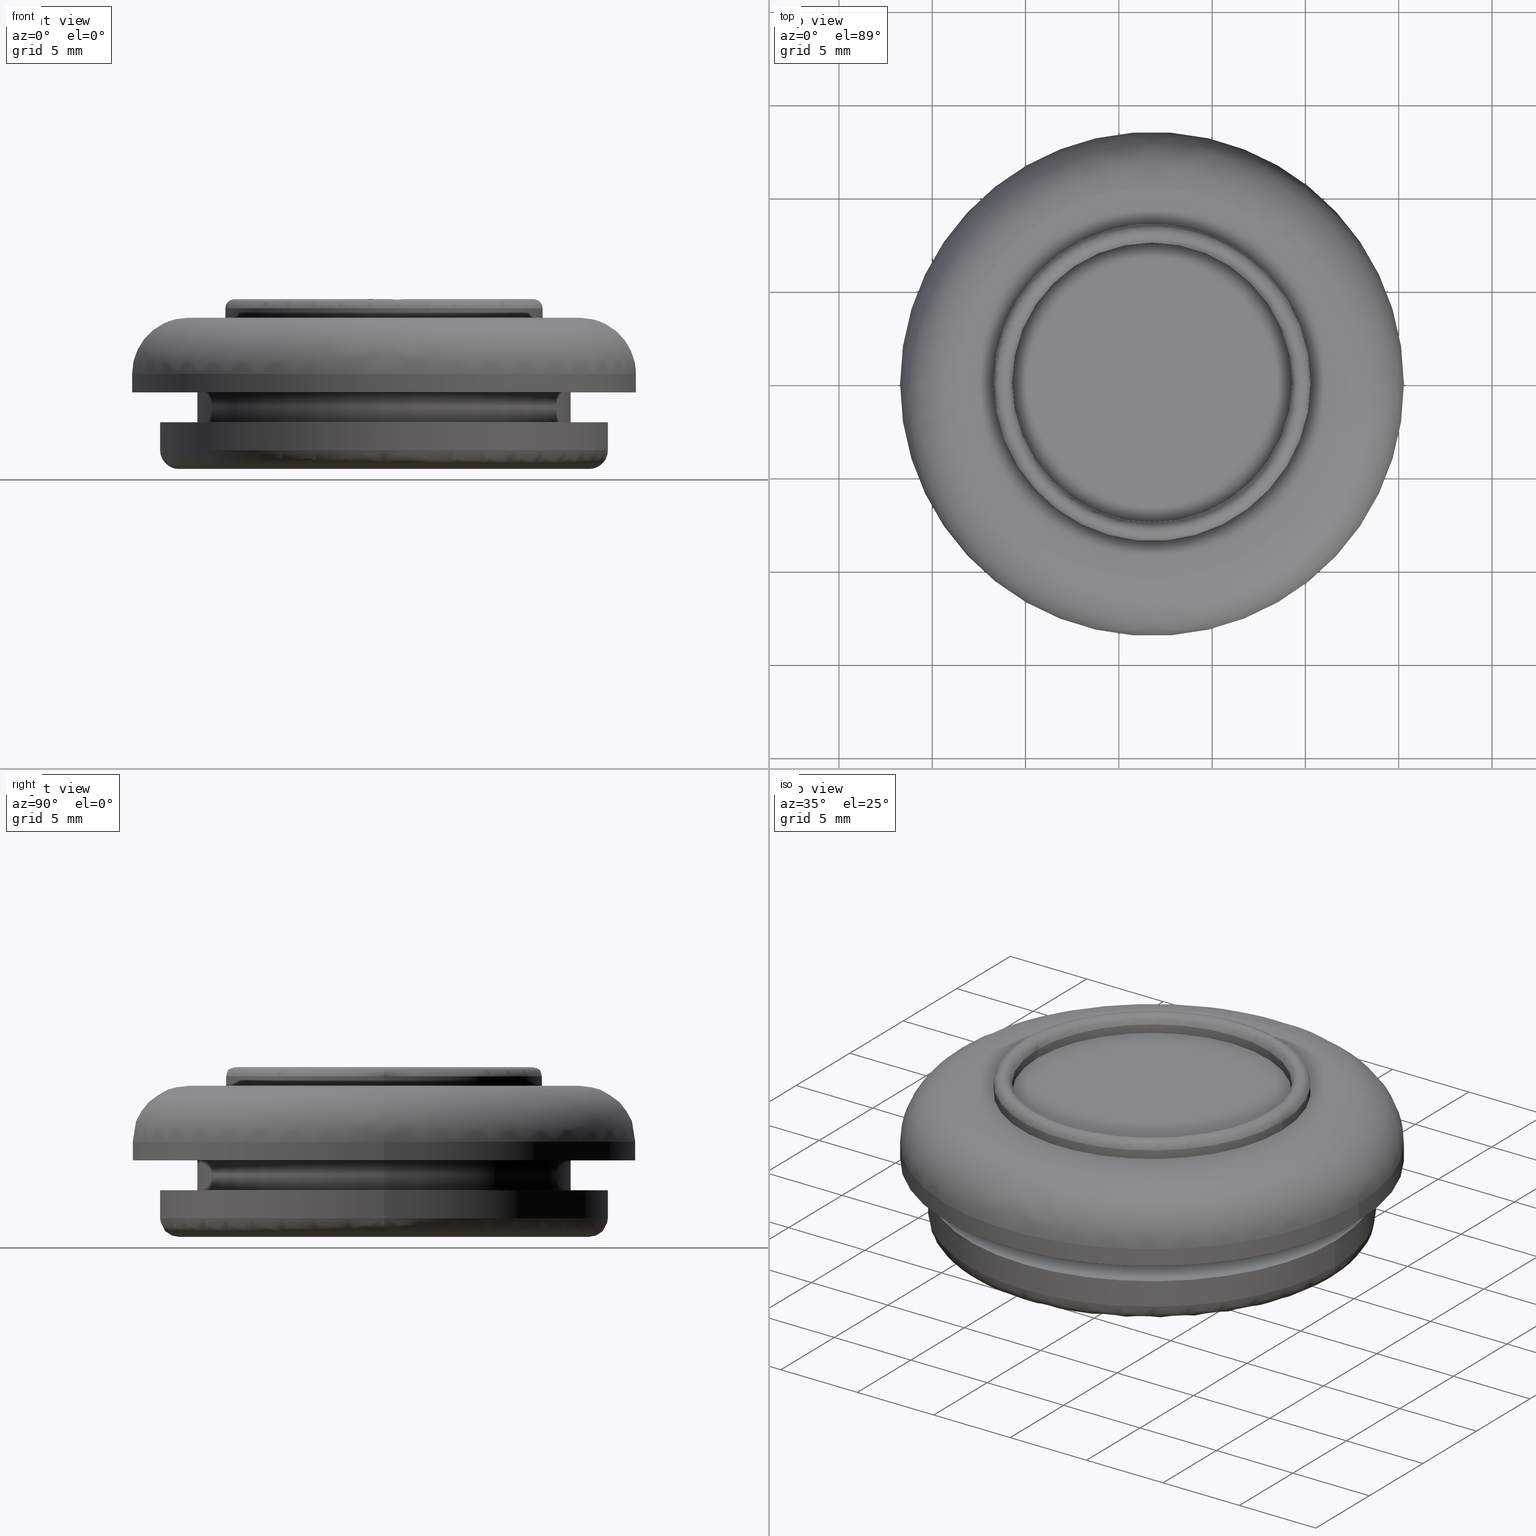
[diagram: canonical four-view strip — front | top / right | iso, engineering-drawing reading convention]
A machine part, canonical four-view strip (front | top / right | iso — engineering-drawing reading convention). The complete STEP part file that produces these views, byte-faithful:
ISO-10303-21;
HEADER;

FILE_DESCRIPTION( (''), '2;1');
FILE_NAME ('PC08.3712.TM_MG_3_449.stp','2019-08-23T16:14:22',(''),(''),'spGate 15.6.1','','');

FILE_SCHEMA (('AUTOMOTIVE_DESIGN'));
ENDSEC;

DATA;
#10=(GEOMETRIC_REPRESENTATION_CONTEXT(3) GLOBAL_UNCERTAINTY_ASSIGNED_CONTEXT((#11)) GLOBAL_UNIT_ASSIGNED_CONTEXT((#12,#13,#14)) REPRESENTATION_CONTEXT('ID1','3D'));
#11=UNCERTAINTY_MEASURE_WITH_UNIT(LENGTH_MEASURE(0.01),#15,'DISTANCE_ACCURACY_VALUE','Maximum model space distance between geometric entities at asserted connectivities');
#12=(NAMED_UNIT(*) SI_UNIT($,.STERADIAN.) SOLID_ANGLE_UNIT());
#13=(CONVERSION_BASED_UNIT('DEGREE',#16) NAMED_UNIT(#17) PLANE_ANGLE_UNIT());
#14=(LENGTH_UNIT() NAMED_UNIT(*) SI_UNIT(.MILLI.,.METRE.));
#15=(LENGTH_UNIT() NAMED_UNIT(*) SI_UNIT(.MILLI.,.METRE.));
#16=PLANE_ANGLE_MEASURE_WITH_UNIT(PLANE_ANGLE_MEASURE(0.01745329252),#18);
#17=DIMENSIONAL_EXPONENTS(0.0,0.0,0.0,0.0,0.0,0.0,0.0);
#18=(NAMED_UNIT(*) PLANE_ANGLE_UNIT() SI_UNIT($,.RADIAN.));
#19=MANIFOLD_SOLID_BREP('TM_MG_3',#31);
#20=ADVANCED_BREP_SHAPE_REPRESENTATION('',(#19),#10);
#21=APPLICATION_CONTEXT('');
#22=APPLICATION_PROTOCOL_DEFINITION('International Standard','automotive_design',1999,#21);
#23=PRODUCT_DEFINITION_CONTEXT('',#21,'design');
#24=PRODUCT_CONTEXT('',#21,'mechanical');
#25=PRODUCT('','','',(#24));
#26=PRODUCT_DEFINITION_FORMATION_WITH_SPECIFIED_SOURCE('','',#25,.NOT_KNOWN.);
#27=PRODUCT_RELATED_PRODUCT_CATEGORY('tool','tool',(#25));
#28=PRODUCT_DEFINITION('','',#26,#23);
#29=PRODUCT_DEFINITION_SHAPE('','',#28);
#30=SHAPE_DEFINITION_REPRESENTATION(#29,#20);
#31=CLOSED_SHELL('',(#40,#41,#42,#43,#44,#45,#46,#47,#48,#49,#50,#51,#52,#53,#54,#55,#56,#57,#58,#59,#60,#61,#62,#63));
#32=COLOUR_RGB('',0.00000000000E+000,0.00000000000E+000,0.00000000000E+000);
#33=FILL_AREA_STYLE_COLOUR('',#32);
#34=FILL_AREA_STYLE('',(#33));
#35=SURFACE_STYLE_FILL_AREA(#34);
#36=SURFACE_SIDE_STYLE('',(#35));
#37=SURFACE_STYLE_USAGE(.BOTH.,#36);
#38=PRESENTATION_STYLE_ASSIGNMENT((#37));
#39=STYLED_ITEM('',(#38),#19);
#40=ADVANCED_FACE('',(#65,#66),#64,.F.);
#41=ADVANCED_FACE('',(#76,#77),#75,.F.);
#42=ADVANCED_FACE('',(#87,#88),#86,.F.);
#43=ADVANCED_FACE('',(#98),#97,.F.);
#44=ADVANCED_FACE('',(#108),#107,.F.);
#45=ADVANCED_FACE('',(#118,#119),#117,.F.);
#46=ADVANCED_FACE('',(#129),#128,.T.);
#47=ADVANCED_FACE('',(#139),#138,.T.);
#48=ADVANCED_FACE('',(#149),#148,.T.);
#49=ADVANCED_FACE('',(#159),#158,.T.);
#50=ADVANCED_FACE('',(#169),#168,.T.);
#51=ADVANCED_FACE('',(#179),#178,.T.);
#52=ADVANCED_FACE('',(#189),#188,.T.);
#53=ADVANCED_FACE('',(#199),#198,.T.);
#54=ADVANCED_FACE('',(#209),#208,.T.);
#55=ADVANCED_FACE('',(#219),#218,.T.);
#56=ADVANCED_FACE('',(#229),#228,.T.);
#57=ADVANCED_FACE('',(#239),#238,.T.);
#58=ADVANCED_FACE('',(#249),#248,.T.);
#59=ADVANCED_FACE('',(#259),#258,.T.);
#60=ADVANCED_FACE('',(#269),#268,.F.);
#61=ADVANCED_FACE('',(#279),#278,.F.);
#62=ADVANCED_FACE('',(#289),#288,.F.);
#63=ADVANCED_FACE('',(#299),#298,.F.);
#64=PLANE('',#311);
#65=FACE_OUTER_BOUND('',#312,.T.);
#66=FACE_BOUND('',#313,.T.);
#67=COLOUR_RGB('',1.00000000000E+000,1.00000000000E+000,1.00000000000E+000);
#68=FILL_AREA_STYLE_COLOUR('',#67);
#69=FILL_AREA_STYLE('',(#68));
#70=SURFACE_STYLE_FILL_AREA(#69);
#71=SURFACE_SIDE_STYLE('',(#70));
#72=SURFACE_STYLE_USAGE(.BOTH.,#71);
#73=PRESENTATION_STYLE_ASSIGNMENT((#72));
#74=STYLED_ITEM('',(#73),#40);
#75=PLANE('',#317);
#76=FACE_OUTER_BOUND('',#318,.T.);
#77=FACE_BOUND('',#319,.T.);
#78=COLOUR_RGB('',1.00000000000E+000,1.00000000000E+000,1.00000000000E+000);
#79=FILL_AREA_STYLE_COLOUR('',#78);
#80=FILL_AREA_STYLE('',(#79));
#81=SURFACE_STYLE_FILL_AREA(#80);
#82=SURFACE_SIDE_STYLE('',(#81));
#83=SURFACE_STYLE_USAGE(.BOTH.,#82);
#84=PRESENTATION_STYLE_ASSIGNMENT((#83));
#85=STYLED_ITEM('',(#84),#41);
#86=PLANE('',#323);
#87=FACE_OUTER_BOUND('',#324,.T.);
#88=FACE_BOUND('',#325,.T.);
#89=COLOUR_RGB('',1.00000000000E+000,1.00000000000E+000,1.00000000000E+000);
#90=FILL_AREA_STYLE_COLOUR('',#89);
#91=FILL_AREA_STYLE('',(#90));
#92=SURFACE_STYLE_FILL_AREA(#91);
#93=SURFACE_SIDE_STYLE('',(#92));
#94=SURFACE_STYLE_USAGE(.BOTH.,#93);
#95=PRESENTATION_STYLE_ASSIGNMENT((#94));
#96=STYLED_ITEM('',(#95),#42);
#97=PLANE('',#329);
#98=FACE_OUTER_BOUND('',#330,.T.);
#99=COLOUR_RGB('',1.00000000000E+000,1.00000000000E+000,1.00000000000E+000);
#100=FILL_AREA_STYLE_COLOUR('',#99);
#101=FILL_AREA_STYLE('',(#100));
#102=SURFACE_STYLE_FILL_AREA(#101);
#103=SURFACE_SIDE_STYLE('',(#102));
#104=SURFACE_STYLE_USAGE(.BOTH.,#103);
#105=PRESENTATION_STYLE_ASSIGNMENT((#104));
#106=STYLED_ITEM('',(#105),#43);
#107=PLANE('',#334);
#108=FACE_OUTER_BOUND('',#335,.T.);
#109=COLOUR_RGB('',1.00000000000E+000,1.00000000000E+000,1.00000000000E+000);
#110=FILL_AREA_STYLE_COLOUR('',#109);
#111=FILL_AREA_STYLE('',(#110));
#112=SURFACE_STYLE_FILL_AREA(#111);
#113=SURFACE_SIDE_STYLE('',(#112));
#114=SURFACE_STYLE_USAGE(.BOTH.,#113);
#115=PRESENTATION_STYLE_ASSIGNMENT((#114));
#116=STYLED_ITEM('',(#115),#44);
#117=PLANE('',#339);
#118=FACE_OUTER_BOUND('',#340,.T.);
#119=FACE_BOUND('',#341,.T.);
#120=COLOUR_RGB('',1.00000000000E+000,1.00000000000E+000,1.00000000000E+000);
#121=FILL_AREA_STYLE_COLOUR('',#120);
#122=FILL_AREA_STYLE('',(#121));
#123=SURFACE_STYLE_FILL_AREA(#122);
#124=SURFACE_SIDE_STYLE('',(#123));
#125=SURFACE_STYLE_USAGE(.BOTH.,#124);
#126=PRESENTATION_STYLE_ASSIGNMENT((#125));
#127=STYLED_ITEM('',(#126),#45);
#128=( BOUNDED_SURFACE() B_SPLINE_SURFACE( 2,2,((#342,#343,#344,#345,#346),(#347,#348,#349,#350,#351),(#352,#353,#354,#355,#356),(#357,#358,#359,#360,#361),(#362,#363,#364,#365,#366)), .UNSPECIFIED.,.F.,.F.,.F.) B_SPLINE_SURFACE_WITH_KNOTS((3,2,3),(3,2,3),(0.00000000000E+000,5.00000000000E-001,1.00000000000E+000),(0.00000000000E+000,5.00000000000E-001,1.00000000000E+000), .UNSPECIFIED. ) GEOMETRIC_REPRESENTATION_ITEM() RATIONAL_B_SPLINE_SURFACE(((1.00000000000E+000,7.07106781187E-001,1.00000000000E+000,7.07106781187E-001,1.00000000000E+000),(7.07106781187E-001,5.00000000000E-001,7.07106781187E-001,5.00000000000E-001,7.07106781187E-001),(1.00000000000E+000,7.07106781187E-001,1.00000000000E+000,7.07106781187E-001,1.00000000000E+000),(7.07106781187E-001,5.00000000000E-001,7.07106781187E-001,5.00000000000E-001,7.07106781187E-001),(1.00000000000E+000,7.07106781187E-001,1.00000000000E+000,7.07106781187E-001,1.00000000000E+000))) REPRESENTATION_ITEM('') SURFACE() );
#129=FACE_OUTER_BOUND('',#367,.T.);
#130=COLOUR_RGB('',1.00000000000E+000,1.00000000000E+000,1.00000000000E+000);
#131=FILL_AREA_STYLE_COLOUR('',#130);
#132=FILL_AREA_STYLE('',(#131));
#133=SURFACE_STYLE_FILL_AREA(#132);
#134=SURFACE_SIDE_STYLE('',(#133));
#135=SURFACE_STYLE_USAGE(.BOTH.,#134);
#136=PRESENTATION_STYLE_ASSIGNMENT((#135));
#137=STYLED_ITEM('',(#136),#46);
#138=( BOUNDED_SURFACE() B_SPLINE_SURFACE( 2,2,((#368,#369,#370,#371,#372),(#373,#374,#375,#376,#377),(#378,#379,#380,#381,#382),(#383,#384,#385,#386,#387),(#388,#389,#390,#391,#392)), .UNSPECIFIED.,.F.,.F.,.F.) B_SPLINE_SURFACE_WITH_KNOTS((3,2,3),(3,2,3),(0.00000000000E+000,5.00000000000E-001,1.00000000000E+000),(0.00000000000E+000,5.00000000000E-001,1.00000000000E+000), .UNSPECIFIED. ) GEOMETRIC_REPRESENTATION_ITEM() RATIONAL_B_SPLINE_SURFACE(((1.00000000000E+000,7.07106781187E-001,1.00000000000E+000,7.07106781187E-001,1.00000000000E+000),(7.07106781187E-001,5.00000000000E-001,7.07106781187E-001,5.00000000000E-001,7.07106781187E-001),(1.00000000000E+000,7.07106781187E-001,1.00000000000E+000,7.07106781187E-001,1.00000000000E+000),(7.07106781187E-001,5.00000000000E-001,7.07106781187E-001,5.00000000000E-001,7.07106781187E-001),(1.00000000000E+000,7.07106781187E-001,1.00000000000E+000,7.07106781187E-001,1.00000000000E+000))) REPRESENTATION_ITEM('') SURFACE() );
#139=FACE_OUTER_BOUND('',#393,.T.);
#140=COLOUR_RGB('',1.00000000000E+000,1.00000000000E+000,1.00000000000E+000);
#141=FILL_AREA_STYLE_COLOUR('',#140);
#142=FILL_AREA_STYLE('',(#141));
#143=SURFACE_STYLE_FILL_AREA(#142);
#144=SURFACE_SIDE_STYLE('',(#143));
#145=SURFACE_STYLE_USAGE(.BOTH.,#144);
#146=PRESENTATION_STYLE_ASSIGNMENT((#145));
#147=STYLED_ITEM('',(#146),#47);
#148=CYLINDRICAL_SURFACE('',#397,1.20000000000E+001);
#149=FACE_OUTER_BOUND('',#398,.T.);
#150=COLOUR_RGB('',1.00000000000E+000,1.00000000000E+000,1.00000000000E+000);
#151=FILL_AREA_STYLE_COLOUR('',#150);
#152=FILL_AREA_STYLE('',(#151));
#153=SURFACE_STYLE_FILL_AREA(#152);
#154=SURFACE_SIDE_STYLE('',(#153));
#155=SURFACE_STYLE_USAGE(.BOTH.,#154);
#156=PRESENTATION_STYLE_ASSIGNMENT((#155));
#157=STYLED_ITEM('',(#156),#48);
#158=CYLINDRICAL_SURFACE('',#402,1.20000000000E+001);
#159=FACE_OUTER_BOUND('',#403,.T.);
#160=COLOUR_RGB('',1.00000000000E+000,1.00000000000E+000,1.00000000000E+000);
#161=FILL_AREA_STYLE_COLOUR('',#160);
#162=FILL_AREA_STYLE('',(#161));
#163=SURFACE_STYLE_FILL_AREA(#162);
#164=SURFACE_SIDE_STYLE('',(#163));
#165=SURFACE_STYLE_USAGE(.BOTH.,#164);
#166=PRESENTATION_STYLE_ASSIGNMENT((#165));
#167=STYLED_ITEM('',(#166),#49);
#168=CYLINDRICAL_SURFACE('',#407,1.00000000000E+001);
#169=FACE_OUTER_BOUND('',#408,.T.);
#170=COLOUR_RGB('',1.00000000000E+000,1.00000000000E+000,1.00000000000E+000);
#171=FILL_AREA_STYLE_COLOUR('',#170);
#172=FILL_AREA_STYLE('',(#171));
#173=SURFACE_STYLE_FILL_AREA(#172);
#174=SURFACE_SIDE_STYLE('',(#173));
#175=SURFACE_STYLE_USAGE(.BOTH.,#174);
#176=PRESENTATION_STYLE_ASSIGNMENT((#175));
#177=STYLED_ITEM('',(#176),#50);
#178=CYLINDRICAL_SURFACE('',#412,1.00000000000E+001);
#179=FACE_OUTER_BOUND('',#413,.T.);
#180=COLOUR_RGB('',1.00000000000E+000,1.00000000000E+000,1.00000000000E+000);
#181=FILL_AREA_STYLE_COLOUR('',#180);
#182=FILL_AREA_STYLE('',(#181));
#183=SURFACE_STYLE_FILL_AREA(#182);
#184=SURFACE_SIDE_STYLE('',(#183));
#185=SURFACE_STYLE_USAGE(.BOTH.,#184);
#186=PRESENTATION_STYLE_ASSIGNMENT((#185));
#187=STYLED_ITEM('',(#186),#51);
#188=CYLINDRICAL_SURFACE('',#417,1.35000000000E+001);
#189=FACE_OUTER_BOUND('',#418,.T.);
#190=COLOUR_RGB('',1.00000000000E+000,1.00000000000E+000,1.00000000000E+000);
#191=FILL_AREA_STYLE_COLOUR('',#190);
#192=FILL_AREA_STYLE('',(#191));
#193=SURFACE_STYLE_FILL_AREA(#192);
#194=SURFACE_SIDE_STYLE('',(#193));
#195=SURFACE_STYLE_USAGE(.BOTH.,#194);
#196=PRESENTATION_STYLE_ASSIGNMENT((#195));
#197=STYLED_ITEM('',(#196),#52);
#198=CYLINDRICAL_SURFACE('',#422,1.35000000000E+001);
#199=FACE_OUTER_BOUND('',#423,.T.);
#200=COLOUR_RGB('',1.00000000000E+000,1.00000000000E+000,1.00000000000E+000);
#201=FILL_AREA_STYLE_COLOUR('',#200);
#202=FILL_AREA_STYLE('',(#201));
#203=SURFACE_STYLE_FILL_AREA(#202);
#204=SURFACE_SIDE_STYLE('',(#203));
#205=SURFACE_STYLE_USAGE(.BOTH.,#204);
#206=PRESENTATION_STYLE_ASSIGNMENT((#205));
#207=STYLED_ITEM('',(#206),#53);
#208=( BOUNDED_SURFACE() B_SPLINE_SURFACE( 2,2,((#424,#425,#426,#427,#428),(#429,#430,#431,#432,#433),(#434,#435,#436,#437,#438),(#439,#440,#441,#442,#443),(#444,#445,#446,#447,#448)), .UNSPECIFIED.,.F.,.F.,.F.) B_SPLINE_SURFACE_WITH_KNOTS((3,2,3),(3,2,3),(0.00000000000E+000,5.00000000000E-001,1.00000000000E+000),(0.00000000000E+000,5.00000000000E-001,1.00000000000E+000), .UNSPECIFIED. ) GEOMETRIC_REPRESENTATION_ITEM() RATIONAL_B_SPLINE_SURFACE(((1.00000000000E+000,7.07106781187E-001,1.00000000000E+000,7.07106781187E-001,1.00000000000E+000),(7.07106781187E-001,5.00000000000E-001,7.07106781187E-001,5.00000000000E-001,7.07106781187E-001),(1.00000000000E+000,7.07106781187E-001,1.00000000000E+000,7.07106781187E-001,1.00000000000E+000),(7.07106781187E-001,5.00000000000E-001,7.07106781187E-001,5.00000000000E-001,7.07106781187E-001),(1.00000000000E+000,7.07106781187E-001,1.00000000000E+000,7.07106781187E-001,1.00000000000E+000))) REPRESENTATION_ITEM('') SURFACE() );
#209=FACE_OUTER_BOUND('',#449,.T.);
#210=COLOUR_RGB('',1.00000000000E+000,1.00000000000E+000,1.00000000000E+000);
#211=FILL_AREA_STYLE_COLOUR('',#210);
#212=FILL_AREA_STYLE('',(#211));
#213=SURFACE_STYLE_FILL_AREA(#212);
#214=SURFACE_SIDE_STYLE('',(#213));
#215=SURFACE_STYLE_USAGE(.BOTH.,#214);
#216=PRESENTATION_STYLE_ASSIGNMENT((#215));
#217=STYLED_ITEM('',(#216),#54);
#218=( BOUNDED_SURFACE() B_SPLINE_SURFACE( 2,2,((#450,#451,#452,#453,#454),(#455,#456,#457,#458,#459),(#460,#461,#462,#463,#464),(#465,#466,#467,#468,#469),(#470,#471,#472,#473,#474)), .UNSPECIFIED.,.F.,.F.,.F.) B_SPLINE_SURFACE_WITH_KNOTS((3,2,3),(3,2,3),(0.00000000000E+000,5.00000000000E-001,1.00000000000E+000),(0.00000000000E+000,5.00000000000E-001,1.00000000000E+000), .UNSPECIFIED. ) GEOMETRIC_REPRESENTATION_ITEM() RATIONAL_B_SPLINE_SURFACE(((1.00000000000E+000,7.07106781187E-001,1.00000000000E+000,7.07106781187E-001,1.00000000000E+000),(7.07106781187E-001,5.00000000000E-001,7.07106781187E-001,5.00000000000E-001,7.07106781187E-001),(1.00000000000E+000,7.07106781187E-001,1.00000000000E+000,7.07106781187E-001,1.00000000000E+000),(7.07106781187E-001,5.00000000000E-001,7.07106781187E-001,5.00000000000E-001,7.07106781187E-001),(1.00000000000E+000,7.07106781187E-001,1.00000000000E+000,7.07106781187E-001,1.00000000000E+000))) REPRESENTATION_ITEM('') SURFACE() );
#219=FACE_OUTER_BOUND('',#475,.T.);
#220=COLOUR_RGB('',1.00000000000E+000,1.00000000000E+000,1.00000000000E+000);
#221=FILL_AREA_STYLE_COLOUR('',#220);
#222=FILL_AREA_STYLE('',(#221));
#223=SURFACE_STYLE_FILL_AREA(#222);
#224=SURFACE_SIDE_STYLE('',(#223));
#225=SURFACE_STYLE_USAGE(.BOTH.,#224);
#226=PRESENTATION_STYLE_ASSIGNMENT((#225));
#227=STYLED_ITEM('',(#226),#55);
#228=CYLINDRICAL_SURFACE('',#479,8.50000000000E+000);
#229=FACE_OUTER_BOUND('',#480,.T.);
#230=COLOUR_RGB('',1.00000000000E+000,1.00000000000E+000,1.00000000000E+000);
#231=FILL_AREA_STYLE_COLOUR('',#230);
#232=FILL_AREA_STYLE('',(#231));
#233=SURFACE_STYLE_FILL_AREA(#232);
#234=SURFACE_SIDE_STYLE('',(#233));
#235=SURFACE_STYLE_USAGE(.BOTH.,#234);
#236=PRESENTATION_STYLE_ASSIGNMENT((#235));
#237=STYLED_ITEM('',(#236),#56);
#238=CYLINDRICAL_SURFACE('',#484,8.50000000000E+000);
#239=FACE_OUTER_BOUND('',#485,.T.);
#240=COLOUR_RGB('',1.00000000000E+000,1.00000000000E+000,1.00000000000E+000);
#241=FILL_AREA_STYLE_COLOUR('',#240);
#242=FILL_AREA_STYLE('',(#241));
#243=SURFACE_STYLE_FILL_AREA(#242);
#244=SURFACE_SIDE_STYLE('',(#243));
#245=SURFACE_STYLE_USAGE(.BOTH.,#244);
#246=PRESENTATION_STYLE_ASSIGNMENT((#245));
#247=STYLED_ITEM('',(#246),#57);
#248=( BOUNDED_SURFACE() B_SPLINE_SURFACE( 2,2,((#486,#487,#488,#489,#490),(#491,#492,#493,#494,#495),(#496,#497,#498,#499,#500),(#501,#502,#503,#504,#505),(#506,#507,#508,#509,#510)), .UNSPECIFIED.,.F.,.F.,.F.) B_SPLINE_SURFACE_WITH_KNOTS((3,2,3),(3,2,3),(0.00000000000E+000,5.00000000000E-001,1.00000000000E+000),(0.00000000000E+000,5.00000000000E-001,1.00000000000E+000), .UNSPECIFIED. ) GEOMETRIC_REPRESENTATION_ITEM() RATIONAL_B_SPLINE_SURFACE(((1.00000000000E+000,7.07106781187E-001,1.00000000000E+000,7.07106781187E-001,1.00000000000E+000),(7.07106781187E-001,5.00000000000E-001,7.07106781187E-001,5.00000000000E-001,7.07106781187E-001),(1.00000000000E+000,7.07106781187E-001,1.00000000000E+000,7.07106781187E-001,1.00000000000E+000),(7.07106781187E-001,5.00000000000E-001,7.07106781187E-001,5.00000000000E-001,7.07106781187E-001),(1.00000000000E+000,7.07106781187E-001,1.00000000000E+000,7.07106781187E-001,1.00000000000E+000))) REPRESENTATION_ITEM('') SURFACE() );
#249=FACE_OUTER_BOUND('',#511,.T.);
#250=COLOUR_RGB('',1.00000000000E+000,1.00000000000E+000,1.00000000000E+000);
#251=FILL_AREA_STYLE_COLOUR('',#250);
#252=FILL_AREA_STYLE('',(#251));
#253=SURFACE_STYLE_FILL_AREA(#252);
#254=SURFACE_SIDE_STYLE('',(#253));
#255=SURFACE_STYLE_USAGE(.BOTH.,#254);
#256=PRESENTATION_STYLE_ASSIGNMENT((#255));
#257=STYLED_ITEM('',(#256),#58);
#258=( BOUNDED_SURFACE() B_SPLINE_SURFACE( 2,2,((#512,#513,#514,#515,#516),(#517,#518,#519,#520,#521),(#522,#523,#524,#525,#526),(#527,#528,#529,#530,#531),(#532,#533,#534,#535,#536)), .UNSPECIFIED.,.F.,.F.,.F.) B_SPLINE_SURFACE_WITH_KNOTS((3,2,3),(3,2,3),(0.00000000000E+000,5.00000000000E-001,1.00000000000E+000),(0.00000000000E+000,5.00000000000E-001,1.00000000000E+000), .UNSPECIFIED. ) GEOMETRIC_REPRESENTATION_ITEM() RATIONAL_B_SPLINE_SURFACE(((1.00000000000E+000,7.07106781187E-001,1.00000000000E+000,7.07106781187E-001,1.00000000000E+000),(7.07106781187E-001,5.00000000000E-001,7.07106781187E-001,5.00000000000E-001,7.07106781187E-001),(1.00000000000E+000,7.07106781187E-001,1.00000000000E+000,7.07106781187E-001,1.00000000000E+000),(7.07106781187E-001,5.00000000000E-001,7.07106781187E-001,5.00000000000E-001,7.07106781187E-001),(1.00000000000E+000,7.07106781187E-001,1.00000000000E+000,7.07106781187E-001,1.00000000000E+000))) REPRESENTATION_ITEM('') SURFACE() );
#259=FACE_OUTER_BOUND('',#537,.T.);
#260=COLOUR_RGB('',1.00000000000E+000,1.00000000000E+000,1.00000000000E+000);
#261=FILL_AREA_STYLE_COLOUR('',#260);
#262=FILL_AREA_STYLE('',(#261));
#263=SURFACE_STYLE_FILL_AREA(#262);
#264=SURFACE_SIDE_STYLE('',(#263));
#265=SURFACE_STYLE_USAGE(.BOTH.,#264);
#266=PRESENTATION_STYLE_ASSIGNMENT((#265));
#267=STYLED_ITEM('',(#266),#59);
#268=CYLINDRICAL_SURFACE('',#541,7.50000000000E+000);
#269=FACE_OUTER_BOUND('',#542,.T.);
#270=COLOUR_RGB('',1.00000000000E+000,1.00000000000E+000,1.00000000000E+000);
#271=FILL_AREA_STYLE_COLOUR('',#270);
#272=FILL_AREA_STYLE('',(#271));
#273=SURFACE_STYLE_FILL_AREA(#272);
#274=SURFACE_SIDE_STYLE('',(#273));
#275=SURFACE_STYLE_USAGE(.BOTH.,#274);
#276=PRESENTATION_STYLE_ASSIGNMENT((#275));
#277=STYLED_ITEM('',(#276),#60);
#278=CYLINDRICAL_SURFACE('',#546,7.50000000000E+000);
#279=FACE_OUTER_BOUND('',#547,.T.);
#280=COLOUR_RGB('',1.00000000000E+000,1.00000000000E+000,1.00000000000E+000);
#281=FILL_AREA_STYLE_COLOUR('',#280);
#282=FILL_AREA_STYLE('',(#281));
#283=SURFACE_STYLE_FILL_AREA(#282);
#284=SURFACE_SIDE_STYLE('',(#283));
#285=SURFACE_STYLE_USAGE(.BOTH.,#284);
#286=PRESENTATION_STYLE_ASSIGNMENT((#285));
#287=STYLED_ITEM('',(#286),#61);
#288=CYLINDRICAL_SURFACE('',#551,7.50000000000E+000);
#289=FACE_OUTER_BOUND('',#552,.T.);
#290=COLOUR_RGB('',1.00000000000E+000,1.00000000000E+000,1.00000000000E+000);
#291=FILL_AREA_STYLE_COLOUR('',#290);
#292=FILL_AREA_STYLE('',(#291));
#293=SURFACE_STYLE_FILL_AREA(#292);
#294=SURFACE_SIDE_STYLE('',(#293));
#295=SURFACE_STYLE_USAGE(.BOTH.,#294);
#296=PRESENTATION_STYLE_ASSIGNMENT((#295));
#297=STYLED_ITEM('',(#296),#62);
#298=CYLINDRICAL_SURFACE('',#556,7.50000000000E+000);
#299=FACE_OUTER_BOUND('',#557,.T.);
#300=COLOUR_RGB('',1.00000000000E+000,1.00000000000E+000,1.00000000000E+000);
#301=FILL_AREA_STYLE_COLOUR('',#300);
#302=FILL_AREA_STYLE('',(#301));
#303=SURFACE_STYLE_FILL_AREA(#302);
#304=SURFACE_SIDE_STYLE('',(#303));
#305=SURFACE_STYLE_USAGE(.BOTH.,#304);
#306=PRESENTATION_STYLE_ASSIGNMENT((#305));
#307=STYLED_ITEM('',(#306),#63);
#308=CARTESIAN_POINT('',(3.04378069758E+002,-2.49415316290E+001,2.66137988893E+002));
#309=DIRECTION('',(-0.00000000000E+000,0.00000000000E+000,-1.00000000000E+000));
#310=DIRECTION('',(-1.00000000000E+000,0.00000000000E+000,0.00000000000E+000));
#311=AXIS2_PLACEMENT_3D('',#308,#309,#310);
#312=EDGE_LOOP('',(#558,#559));
#313=EDGE_LOOP('',(#560,#561));
#314=CARTESIAN_POINT('',(2.59228069758E+002,-2.80592230826E+001,2.67737988893E+002));
#315=DIRECTION('',(0.00000000000E+000,0.00000000000E+000,1.00000000000E+000));
#316=DIRECTION('',(1.00000000000E+000,0.00000000000E+000,-0.00000000000E+000));
#317=AXIS2_PLACEMENT_3D('',#314,#315,#316);
#318=EDGE_LOOP('',(#562,#563));
#319=EDGE_LOOP('',(#564,#565));
#320=CARTESIAN_POINT('',(3.00928069758E+002,-2.18238401754E+001,2.71737988893E+002));
#321=DIRECTION('',(-0.00000000000E+000,0.00000000000E+000,-1.00000000000E+000));
#322=DIRECTION('',(-1.00000000000E+000,0.00000000000E+000,0.00000000000E+000));
#323=AXIS2_PLACEMENT_3D('',#320,#321,#322);
#324=EDGE_LOOP('',(#566,#567));
#325=EDGE_LOOP('',(#568,#569));
#326=CARTESIAN_POINT('',(2.94028069758E+002,-1.55884572681E+001,2.71737988893E+002));
#327=DIRECTION('',(-0.00000000000E+000,0.00000000000E+000,-1.00000000000E+000));
#328=DIRECTION('',(-1.00000000000E+000,0.00000000000E+000,0.00000000000E+000));
#329=AXIS2_PLACEMENT_3D('',#326,#327,#328);
#330=EDGE_LOOP('',(#570,#571));
#331=CARTESIAN_POINT('',(2.67028069758E+002,-1.55884572681E+001,2.71237988893E+002));
#332=DIRECTION('',(0.00000000000E+000,0.00000000000E+000,1.00000000000E+000));
#333=DIRECTION('',(1.00000000000E+000,0.00000000000E+000,-0.00000000000E+000));
#334=AXIS2_PLACEMENT_3D('',#331,#332,#333);
#335=EDGE_LOOP('',(#572,#573));
#336=CARTESIAN_POINT('',(2.62478069758E+002,-2.28630706599E+001,2.63637988893E+002));
#337=DIRECTION('',(0.00000000000E+000,0.00000000000E+000,1.00000000000E+000));
#338=DIRECTION('',(1.00000000000E+000,0.00000000000E+000,-0.00000000000E+000));
#339=AXIS2_PLACEMENT_3D('',#336,#337,#338);
#340=EDGE_LOOP('',(#574,#575));
#341=EDGE_LOOP('',(#576,#577));
#342=CARTESIAN_POINT('',(2.88778069758E+002,-1.46952762459E-015,2.64637988893E+002));
#343=CARTESIAN_POINT('',(2.88778069758E+002,-1.46952762459E-015,2.63637988893E+002));
#344=CARTESIAN_POINT('',(2.87778069758E+002,-1.34706698920E-015,2.63637988893E+002));
#345=CARTESIAN_POINT('',(2.86778069758E+002,-1.22460635382E-015,2.63637988893E+002));
#346=CARTESIAN_POINT('',(2.86778069758E+002,-1.22460635382E-015,2.64637988893E+002));
#347=CARTESIAN_POINT('',(2.88778069758E+002,-1.20000000000E+001,2.64637988893E+002));
#348=CARTESIAN_POINT('',(2.88778069758E+002,-1.20000000000E+001,2.63637988893E+002));
#349=CARTESIAN_POINT('',(2.87778069758E+002,-1.10000000000E+001,2.63637988893E+002));
#350=CARTESIAN_POINT('',(2.86778069758E+002,-1.00000000000E+001,2.63637988893E+002));
#351=CARTESIAN_POINT('',(2.86778069758E+002,-1.00000000000E+001,2.64637988893E+002));
#352=CARTESIAN_POINT('',(2.76778069758E+002,-1.20000000000E+001,2.64637988893E+002));
#353=CARTESIAN_POINT('',(2.76778069758E+002,-1.20000000000E+001,2.63637988893E+002));
#354=CARTESIAN_POINT('',(2.76778069758E+002,-1.10000000000E+001,2.63637988893E+002));
#355=CARTESIAN_POINT('',(2.76778069758E+002,-1.00000000000E+001,2.63637988893E+002));
#356=CARTESIAN_POINT('',(2.76778069758E+002,-1.00000000000E+001,2.64637988893E+002));
#357=CARTESIAN_POINT('',(2.64778069758E+002,-1.20000000000E+001,2.64637988893E+002));
#358=CARTESIAN_POINT('',(2.64778069758E+002,-1.20000000000E+001,2.63637988893E+002));
#359=CARTESIAN_POINT('',(2.65778069758E+002,-1.10000000000E+001,2.63637988893E+002));
#360=CARTESIAN_POINT('',(2.66778069758E+002,-1.00000000000E+001,2.63637988893E+002));
#361=CARTESIAN_POINT('',(2.66778069758E+002,-1.00000000000E+001,2.64637988893E+002));
#362=CARTESIAN_POINT('',(2.64778069758E+002,-4.85343899695E-020,2.64637988893E+002));
#363=CARTESIAN_POINT('',(2.64778069758E+002,-4.85343899666E-020,2.63637988893E+002));
#364=CARTESIAN_POINT('',(2.65778069758E+002,-4.44898574722E-020,2.63637988893E+002));
#365=CARTESIAN_POINT('',(2.66778069758E+002,-4.04453249699E-020,2.63637988893E+002));
#366=CARTESIAN_POINT('',(2.66778069758E+002,-4.04453249748E-020,2.64637988893E+002));
#367=EDGE_LOOP('',(#578,#579,#580,#581));
#368=CARTESIAN_POINT('',(2.64778069758E+002,-4.85343899711E-020,2.64637988893E+002));
#369=CARTESIAN_POINT('',(2.64778069758E+002,-4.85343899711E-020,2.63637988893E+002));
#370=CARTESIAN_POINT('',(2.65778069758E+002,-4.44898574735E-020,2.63637988893E+002));
#371=CARTESIAN_POINT('',(2.66778069758E+002,-4.04453249759E-020,2.63637988893E+002));
#372=CARTESIAN_POINT('',(2.66778069758E+002,-4.04453249759E-020,2.64637988893E+002));
#373=CARTESIAN_POINT('',(2.64778069758E+002,1.20000000000E+001,2.64637988893E+002));
#374=CARTESIAN_POINT('',(2.64778069758E+002,1.20000000000E+001,2.63637988893E+002));
#375=CARTESIAN_POINT('',(2.65778069758E+002,1.10000000000E+001,2.63637988893E+002));
#376=CARTESIAN_POINT('',(2.66778069758E+002,1.00000000000E+001,2.63637988893E+002));
#377=CARTESIAN_POINT('',(2.66778069758E+002,1.00000000000E+001,2.64637988893E+002));
#378=CARTESIAN_POINT('',(2.76778069758E+002,1.20000000000E+001,2.64637988893E+002));
#379=CARTESIAN_POINT('',(2.76778069758E+002,1.20000000000E+001,2.63637988893E+002));
#380=CARTESIAN_POINT('',(2.76778069758E+002,1.10000000000E+001,2.63637988893E+002));
#381=CARTESIAN_POINT('',(2.76778069758E+002,1.00000000000E+001,2.63637988893E+002));
#382=CARTESIAN_POINT('',(2.76778069758E+002,1.00000000000E+001,2.64637988893E+002));
#383=CARTESIAN_POINT('',(2.88778069758E+002,1.20000000000E+001,2.64637988893E+002));
#384=CARTESIAN_POINT('',(2.88778069758E+002,1.20000000000E+001,2.63637988893E+002));
#385=CARTESIAN_POINT('',(2.87778069758E+002,1.10000000000E+001,2.63637988893E+002));
#386=CARTESIAN_POINT('',(2.86778069758E+002,1.00000000000E+001,2.63637988893E+002));
#387=CARTESIAN_POINT('',(2.86778069758E+002,1.00000000000E+001,2.64637988893E+002));
#388=CARTESIAN_POINT('',(2.88778069758E+002,1.46962469337E-015,2.64637988893E+002));
#389=CARTESIAN_POINT('',(2.88778069758E+002,1.46962469337E-015,2.63637988893E+002));
#390=CARTESIAN_POINT('',(2.87778069758E+002,1.34715596892E-015,2.63637988893E+002));
#391=CARTESIAN_POINT('',(2.86778069758E+002,1.22468724447E-015,2.63637988893E+002));
#392=CARTESIAN_POINT('',(2.86778069758E+002,1.22468724447E-015,2.64637988893E+002));
#393=EDGE_LOOP('',(#582,#583,#584,#585));
#394=CARTESIAN_POINT('',(2.76778069758E+002,0.00000000000E+000,0.00000000000E+000));
#395=DIRECTION('',(0.00000000000E+000,-0.00000000000E+000,1.00000000000E+000));
#396=DIRECTION('',(1.00000000000E+000,0.00000000000E+000,0.00000000000E+000));
#397=AXIS2_PLACEMENT_3D('',#394,#395,#396);
#398=EDGE_LOOP('',(#586,#587,#588,#589));
#399=CARTESIAN_POINT('',(2.76778069758E+002,0.00000000000E+000,0.00000000000E+000));
#400=DIRECTION('',(0.00000000000E+000,-0.00000000000E+000,1.00000000000E+000));
#401=DIRECTION('',(1.00000000000E+000,0.00000000000E+000,0.00000000000E+000));
#402=AXIS2_PLACEMENT_3D('',#399,#400,#401);
#403=EDGE_LOOP('',(#590,#591,#592,#593));
#404=CARTESIAN_POINT('',(2.76778069758E+002,0.00000000000E+000,0.00000000000E+000));
#405=DIRECTION('',(0.00000000000E+000,-0.00000000000E+000,1.00000000000E+000));
#406=DIRECTION('',(1.00000000000E+000,-0.00000000000E+000,-0.00000000000E+000));
#407=AXIS2_PLACEMENT_3D('',#404,#405,#406);
#408=EDGE_LOOP('',(#594,#595,#596,#597));
#409=CARTESIAN_POINT('',(2.76778069758E+002,0.00000000000E+000,0.00000000000E+000));
#410=DIRECTION('',(0.00000000000E+000,-0.00000000000E+000,1.00000000000E+000));
#411=DIRECTION('',(1.00000000000E+000,-0.00000000000E+000,-0.00000000000E+000));
#412=AXIS2_PLACEMENT_3D('',#409,#410,#411);
#413=EDGE_LOOP('',(#598,#599,#600,#601));
#414=CARTESIAN_POINT('',(2.76778069758E+002,0.00000000000E+000,0.00000000000E+000));
#415=DIRECTION('',(0.00000000000E+000,-0.00000000000E+000,1.00000000000E+000));
#416=DIRECTION('',(1.00000000000E+000,-0.00000000000E+000,-0.00000000000E+000));
#417=AXIS2_PLACEMENT_3D('',#414,#415,#416);
#418=EDGE_LOOP('',(#602,#603,#604,#605));
#419=CARTESIAN_POINT('',(2.76778069758E+002,0.00000000000E+000,0.00000000000E+000));
#420=DIRECTION('',(0.00000000000E+000,-0.00000000000E+000,1.00000000000E+000));
#421=DIRECTION('',(1.00000000000E+000,-0.00000000000E+000,-0.00000000000E+000));
#422=AXIS2_PLACEMENT_3D('',#419,#420,#421);
#423=EDGE_LOOP('',(#606,#607,#608,#609));
#424=CARTESIAN_POINT('',(2.84278069758E+002,-9.18454765367E-016,2.68737988893E+002));
#425=CARTESIAN_POINT('',(2.84278069758E+002,-9.18454765367E-016,2.71737988893E+002));
#426=CARTESIAN_POINT('',(2.87278069758E+002,-1.28583667151E-015,2.71737988893E+002));
#427=CARTESIAN_POINT('',(2.90278069758E+002,-1.65321857766E-015,2.71737988893E+002));
#428=CARTESIAN_POINT('',(2.90278069758E+002,-1.65321857766E-015,2.68737988893E+002));
#429=CARTESIAN_POINT('',(2.84278069758E+002,-7.50000000000E+000,2.68737988893E+002));
#430=CARTESIAN_POINT('',(2.84278069758E+002,-7.50000000000E+000,2.71737988893E+002));
#431=CARTESIAN_POINT('',(2.87278069758E+002,-1.05000000000E+001,2.71737988893E+002));
#432=CARTESIAN_POINT('',(2.90278069758E+002,-1.35000000000E+001,2.71737988893E+002));
#433=CARTESIAN_POINT('',(2.90278069758E+002,-1.35000000000E+001,2.68737988893E+002));
#434=CARTESIAN_POINT('',(2.76778069758E+002,-7.50000000000E+000,2.68737988893E+002));
#435=CARTESIAN_POINT('',(2.76778069758E+002,-7.50000000000E+000,2.71737988893E+002));
#436=CARTESIAN_POINT('',(2.76778069758E+002,-1.05000000000E+001,2.71737988893E+002));
#437=CARTESIAN_POINT('',(2.76778069758E+002,-1.35000000000E+001,2.71737988893E+002));
#438=CARTESIAN_POINT('',(2.76778069758E+002,-1.35000000000E+001,2.68737988893E+002));
#439=CARTESIAN_POINT('',(2.69278069758E+002,-7.50000000000E+000,2.68737988893E+002));
#440=CARTESIAN_POINT('',(2.69278069758E+002,-7.50000000000E+000,2.71737988893E+002));
#441=CARTESIAN_POINT('',(2.66278069758E+002,-1.05000000000E+001,2.71737988893E+002));
#442=CARTESIAN_POINT('',(2.63278069758E+002,-1.35000000000E+001,2.71737988893E+002));
#443=CARTESIAN_POINT('',(2.63278069758E+002,-1.35000000000E+001,2.68737988893E+002));
#444=CARTESIAN_POINT('',(2.69278069758E+002,-3.03339937313E-020,2.68737988893E+002));
#445=CARTESIAN_POINT('',(2.69278069758E+002,-3.03339937336E-020,2.71737988893E+002));
#446=CARTESIAN_POINT('',(2.66278069758E+002,-4.24675912235E-020,2.71737988893E+002));
#447=CARTESIAN_POINT('',(2.63278069758E+002,-5.46011887147E-020,2.71737988893E+002));
#448=CARTESIAN_POINT('',(2.63278069758E+002,-5.46011887160E-020,2.68737988893E+002));
#449=EDGE_LOOP('',(#610,#611,#612,#613));
#450=CARTESIAN_POINT('',(2.69278069758E+002,-3.03339937320E-020,2.68737988893E+002));
#451=CARTESIAN_POINT('',(2.69278069758E+002,-3.03339937320E-020,2.71737988893E+002));
#452=CARTESIAN_POINT('',(2.66278069758E+002,-4.24675912247E-020,2.71737988893E+002));
#453=CARTESIAN_POINT('',(2.63278069758E+002,-5.46011887175E-020,2.71737988893E+002));
#454=CARTESIAN_POINT('',(2.63278069758E+002,-5.46011887175E-020,2.68737988893E+002));
#455=CARTESIAN_POINT('',(2.69278069758E+002,7.50000000000E+000,2.68737988893E+002));
#456=CARTESIAN_POINT('',(2.69278069758E+002,7.50000000000E+000,2.71737988893E+002));
#457=CARTESIAN_POINT('',(2.66278069758E+002,1.05000000000E+001,2.71737988893E+002));
#458=CARTESIAN_POINT('',(2.63278069758E+002,1.35000000000E+001,2.71737988893E+002));
#459=CARTESIAN_POINT('',(2.63278069758E+002,1.35000000000E+001,2.68737988893E+002));
#460=CARTESIAN_POINT('',(2.76778069758E+002,7.50000000000E+000,2.68737988893E+002));
#461=CARTESIAN_POINT('',(2.76778069758E+002,7.50000000000E+000,2.71737988893E+002));
#462=CARTESIAN_POINT('',(2.76778069758E+002,1.05000000000E+001,2.71737988893E+002));
#463=CARTESIAN_POINT('',(2.76778069758E+002,1.35000000000E+001,2.71737988893E+002));
#464=CARTESIAN_POINT('',(2.76778069758E+002,1.35000000000E+001,2.68737988893E+002));
#465=CARTESIAN_POINT('',(2.84278069758E+002,7.50000000000E+000,2.68737988893E+002));
#466=CARTESIAN_POINT('',(2.84278069758E+002,7.50000000000E+000,2.71737988893E+002));
#467=CARTESIAN_POINT('',(2.87278069758E+002,1.05000000000E+001,2.71737988893E+002));
#468=CARTESIAN_POINT('',(2.90278069758E+002,1.35000000000E+001,2.71737988893E+002));
#469=CARTESIAN_POINT('',(2.90278069758E+002,1.35000000000E+001,2.68737988893E+002));
#470=CARTESIAN_POINT('',(2.84278069758E+002,9.18515433354E-016,2.68737988893E+002));
#471=CARTESIAN_POINT('',(2.84278069758E+002,9.18515433354E-016,2.71737988893E+002));
#472=CARTESIAN_POINT('',(2.87278069758E+002,1.28592160670E-015,2.71737988893E+002));
#473=CARTESIAN_POINT('',(2.90278069758E+002,1.65332778004E-015,2.71737988893E+002));
#474=CARTESIAN_POINT('',(2.90278069758E+002,1.65332778004E-015,2.68737988893E+002));
#475=EDGE_LOOP('',(#614,#615,#616,#617));
#476=CARTESIAN_POINT('',(2.76778069758E+002,0.00000000000E+000,0.00000000000E+000));
#477=DIRECTION('',(0.00000000000E+000,-0.00000000000E+000,1.00000000000E+000));
#478=DIRECTION('',(1.00000000000E+000,-0.00000000000E+000,-0.00000000000E+000));
#479=AXIS2_PLACEMENT_3D('',#476,#477,#478);
#480=EDGE_LOOP('',(#618,#619,#620,#621));
#481=CARTESIAN_POINT('',(2.76778069758E+002,0.00000000000E+000,0.00000000000E+000));
#482=DIRECTION('',(0.00000000000E+000,-0.00000000000E+000,1.00000000000E+000));
#483=DIRECTION('',(1.00000000000E+000,-0.00000000000E+000,-0.00000000000E+000));
#484=AXIS2_PLACEMENT_3D('',#481,#482,#483);
#485=EDGE_LOOP('',(#622,#623,#624,#625));
#486=CARTESIAN_POINT('',(2.84278069758E+002,-9.18454765367E-016,2.72237988893E+002));
#487=CARTESIAN_POINT('',(2.84278069758E+002,-9.18454765367E-016,2.72737988893E+002));
#488=CARTESIAN_POINT('',(2.84778069758E+002,-9.79685083058E-016,2.72737988893E+002));
#489=CARTESIAN_POINT('',(2.85278069758E+002,-1.04091540075E-015,2.72737988893E+002));
#490=CARTESIAN_POINT('',(2.85278069758E+002,-1.04091540075E-015,2.72237988893E+002));
#491=CARTESIAN_POINT('',(2.84278069758E+002,-7.50000000000E+000,2.72237988893E+002));
#492=CARTESIAN_POINT('',(2.84278069758E+002,-7.50000000000E+000,2.72737988893E+002));
#493=CARTESIAN_POINT('',(2.84778069758E+002,-8.00000000000E+000,2.72737988893E+002));
#494=CARTESIAN_POINT('',(2.85278069758E+002,-8.50000000000E+000,2.72737988893E+002));
#495=CARTESIAN_POINT('',(2.85278069758E+002,-8.50000000000E+000,2.72237988893E+002));
#496=CARTESIAN_POINT('',(2.76778069758E+002,-7.50000000000E+000,2.72237988893E+002));
#497=CARTESIAN_POINT('',(2.76778069758E+002,-7.50000000000E+000,2.72737988893E+002));
#498=CARTESIAN_POINT('',(2.76778069758E+002,-8.00000000000E+000,2.72737988893E+002));
#499=CARTESIAN_POINT('',(2.76778069758E+002,-8.50000000000E+000,2.72737988893E+002));
#500=CARTESIAN_POINT('',(2.76778069758E+002,-8.50000000000E+000,2.72237988893E+002));
#501=CARTESIAN_POINT('',(2.69278069758E+002,-7.50000000000E+000,2.72237988893E+002));
#502=CARTESIAN_POINT('',(2.69278069758E+002,-7.50000000000E+000,2.72737988893E+002));
#503=CARTESIAN_POINT('',(2.68778069758E+002,-8.00000000000E+000,2.72737988893E+002));
#504=CARTESIAN_POINT('',(2.68278069758E+002,-8.50000000000E+000,2.72737988893E+002));
#505=CARTESIAN_POINT('',(2.68278069758E+002,-8.50000000000E+000,2.72237988893E+002));
#506=CARTESIAN_POINT('',(2.69278069758E+002,-3.03339937313E-020,2.72237988893E+002));
#507=CARTESIAN_POINT('',(2.69278069758E+002,-3.03339937323E-020,2.72737988893E+002));
#508=CARTESIAN_POINT('',(2.68778069758E+002,-3.23562599766E-020,2.72737988893E+002));
#509=CARTESIAN_POINT('',(2.68278069758E+002,-3.43785262323E-020,2.72737988893E+002));
#510=CARTESIAN_POINT('',(2.68278069758E+002,-3.43785262287E-020,2.72237988893E+002));
#511=EDGE_LOOP('',(#626,#627,#628,#629));
#512=CARTESIAN_POINT('',(2.69278069758E+002,-3.03339937320E-020,2.72237988893E+002));
#513=CARTESIAN_POINT('',(2.69278069758E+002,-3.03339937320E-020,2.72737988893E+002));
#514=CARTESIAN_POINT('',(2.68778069758E+002,-3.23562599808E-020,2.72737988893E+002));
#515=CARTESIAN_POINT('',(2.68278069758E+002,-3.43785262296E-020,2.72737988893E+002));
#516=CARTESIAN_POINT('',(2.68278069758E+002,-3.43785262296E-020,2.72237988893E+002));
#517=CARTESIAN_POINT('',(2.69278069758E+002,7.50000000000E+000,2.72237988893E+002));
#518=CARTESIAN_POINT('',(2.69278069758E+002,7.50000000000E+000,2.72737988893E+002));
#519=CARTESIAN_POINT('',(2.68778069758E+002,8.00000000000E+000,2.72737988893E+002));
#520=CARTESIAN_POINT('',(2.68278069758E+002,8.50000000000E+000,2.72737988893E+002));
#521=CARTESIAN_POINT('',(2.68278069758E+002,8.50000000000E+000,2.72237988893E+002));
#522=CARTESIAN_POINT('',(2.76778069758E+002,7.50000000000E+000,2.72237988893E+002));
#523=CARTESIAN_POINT('',(2.76778069758E+002,7.50000000000E+000,2.72737988893E+002));
#524=CARTESIAN_POINT('',(2.76778069758E+002,8.00000000000E+000,2.72737988893E+002));
#525=CARTESIAN_POINT('',(2.76778069758E+002,8.50000000000E+000,2.72737988893E+002));
#526=CARTESIAN_POINT('',(2.76778069758E+002,8.50000000000E+000,2.72237988893E+002));
#527=CARTESIAN_POINT('',(2.84278069758E+002,7.50000000000E+000,2.72237988893E+002));
#528=CARTESIAN_POINT('',(2.84278069758E+002,7.50000000000E+000,2.72737988893E+002));
#529=CARTESIAN_POINT('',(2.84778069758E+002,8.00000000000E+000,2.72737988893E+002));
#530=CARTESIAN_POINT('',(2.85278069758E+002,8.50000000000E+000,2.72737988893E+002));
#531=CARTESIAN_POINT('',(2.85278069758E+002,8.50000000000E+000,2.72237988893E+002));
#532=CARTESIAN_POINT('',(2.84278069758E+002,9.18515433354E-016,2.72237988893E+002));
#533=CARTESIAN_POINT('',(2.84278069758E+002,9.18515433354E-016,2.72737988893E+002));
#534=CARTESIAN_POINT('',(2.84778069758E+002,9.79749795578E-016,2.72737988893E+002));
#535=CARTESIAN_POINT('',(2.85278069758E+002,1.04098415780E-015,2.72737988893E+002));
#536=CARTESIAN_POINT('',(2.85278069758E+002,1.04098415780E-015,2.72237988893E+002));
#537=EDGE_LOOP('',(#630,#631,#632,#633));
#538=CARTESIAN_POINT('',(2.76778069758E+002,0.00000000000E+000,0.00000000000E+000));
#539=DIRECTION('',(0.00000000000E+000,-0.00000000000E+000,1.00000000000E+000));
#540=DIRECTION('',(1.00000000000E+000,0.00000000000E+000,0.00000000000E+000));
#541=AXIS2_PLACEMENT_3D('',#538,#539,#540);
#542=EDGE_LOOP('',(#634,#635,#636,#637));
#543=CARTESIAN_POINT('',(2.76778069758E+002,0.00000000000E+000,0.00000000000E+000));
#544=DIRECTION('',(0.00000000000E+000,-0.00000000000E+000,1.00000000000E+000));
#545=DIRECTION('',(1.00000000000E+000,0.00000000000E+000,0.00000000000E+000));
#546=AXIS2_PLACEMENT_3D('',#543,#544,#545);
#547=EDGE_LOOP('',(#638,#639,#640,#641));
#548=CARTESIAN_POINT('',(2.76778069758E+002,0.00000000000E+000,0.00000000000E+000));
#549=DIRECTION('',(0.00000000000E+000,-0.00000000000E+000,1.00000000000E+000));
#550=DIRECTION('',(1.00000000000E+000,-0.00000000000E+000,-0.00000000000E+000));
#551=AXIS2_PLACEMENT_3D('',#548,#549,#550);
#552=EDGE_LOOP('',(#642,#643,#644,#645));
#553=CARTESIAN_POINT('',(2.76778069758E+002,0.00000000000E+000,0.00000000000E+000));
#554=DIRECTION('',(0.00000000000E+000,-0.00000000000E+000,1.00000000000E+000));
#555=DIRECTION('',(1.00000000000E+000,-0.00000000000E+000,-0.00000000000E+000));
#556=AXIS2_PLACEMENT_3D('',#553,#554,#555);
#557=EDGE_LOOP('',(#646,#647,#648,#649));
#558=ORIENTED_EDGE('',*,*,#650,.F.);
#559=ORIENTED_EDGE('',*,*,#651,.F.);
#560=ORIENTED_EDGE('',*,*,#652,.T.);
#561=ORIENTED_EDGE('',*,*,#653,.T.);
#562=ORIENTED_EDGE('',*,*,#654,.T.);
#563=ORIENTED_EDGE('',*,*,#655,.T.);
#564=ORIENTED_EDGE('',*,*,#656,.F.);
#565=ORIENTED_EDGE('',*,*,#657,.F.);
#566=ORIENTED_EDGE('',*,*,#658,.F.);
#567=ORIENTED_EDGE('',*,*,#659,.F.);
#568=ORIENTED_EDGE('',*,*,#660,.T.);
#569=ORIENTED_EDGE('',*,*,#661,.T.);
#570=ORIENTED_EDGE('',*,*,#662,.F.);
#571=ORIENTED_EDGE('',*,*,#663,.F.);
#572=ORIENTED_EDGE('',*,*,#664,.T.);
#573=ORIENTED_EDGE('',*,*,#665,.T.);
#574=ORIENTED_EDGE('',*,*,#666,.T.);
#575=ORIENTED_EDGE('',*,*,#667,.T.);
#576=ORIENTED_EDGE('',*,*,#668,.F.);
#577=ORIENTED_EDGE('',*,*,#669,.F.);
#578=ORIENTED_EDGE('',*,*,#667,.F.);
#579=ORIENTED_EDGE('',*,*,#670,.F.);
#580=ORIENTED_EDGE('',*,*,#671,.T.);
#581=ORIENTED_EDGE('',*,*,#672,.T.);
#582=ORIENTED_EDGE('',*,*,#673,.T.);
#583=ORIENTED_EDGE('',*,*,#670,.T.);
#584=ORIENTED_EDGE('',*,*,#666,.F.);
#585=ORIENTED_EDGE('',*,*,#672,.F.);
#586=ORIENTED_EDGE('',*,*,#651,.T.);
#587=ORIENTED_EDGE('',*,*,#674,.F.);
#588=ORIENTED_EDGE('',*,*,#673,.F.);
#589=ORIENTED_EDGE('',*,*,#675,.T.);
#590=ORIENTED_EDGE('',*,*,#671,.F.);
#591=ORIENTED_EDGE('',*,*,#674,.T.);
#592=ORIENTED_EDGE('',*,*,#650,.T.);
#593=ORIENTED_EDGE('',*,*,#675,.F.);
#594=ORIENTED_EDGE('',*,*,#657,.T.);
#595=ORIENTED_EDGE('',*,*,#676,.F.);
#596=ORIENTED_EDGE('',*,*,#652,.F.);
#597=ORIENTED_EDGE('',*,*,#677,.T.);
#598=ORIENTED_EDGE('',*,*,#653,.F.);
#599=ORIENTED_EDGE('',*,*,#676,.T.);
#600=ORIENTED_EDGE('',*,*,#656,.T.);
#601=ORIENTED_EDGE('',*,*,#677,.F.);
#602=ORIENTED_EDGE('',*,*,#678,.T.);
#603=ORIENTED_EDGE('',*,*,#679,.F.);
#604=ORIENTED_EDGE('',*,*,#654,.F.);
#605=ORIENTED_EDGE('',*,*,#680,.T.);
#606=ORIENTED_EDGE('',*,*,#655,.F.);
#607=ORIENTED_EDGE('',*,*,#679,.T.);
#608=ORIENTED_EDGE('',*,*,#681,.T.);
#609=ORIENTED_EDGE('',*,*,#680,.F.);
#610=ORIENTED_EDGE('',*,*,#681,.F.);
#611=ORIENTED_EDGE('',*,*,#682,.F.);
#612=ORIENTED_EDGE('',*,*,#658,.T.);
#613=ORIENTED_EDGE('',*,*,#683,.T.);
#614=ORIENTED_EDGE('',*,*,#659,.T.);
#615=ORIENTED_EDGE('',*,*,#682,.T.);
#616=ORIENTED_EDGE('',*,*,#678,.F.);
#617=ORIENTED_EDGE('',*,*,#683,.F.);
#618=ORIENTED_EDGE('',*,*,#684,.T.);
#619=ORIENTED_EDGE('',*,*,#685,.F.);
#620=ORIENTED_EDGE('',*,*,#660,.F.);
#621=ORIENTED_EDGE('',*,*,#686,.T.);
#622=ORIENTED_EDGE('',*,*,#661,.F.);
#623=ORIENTED_EDGE('',*,*,#685,.T.);
#624=ORIENTED_EDGE('',*,*,#687,.T.);
#625=ORIENTED_EDGE('',*,*,#686,.F.);
#626=ORIENTED_EDGE('',*,*,#687,.F.);
#627=ORIENTED_EDGE('',*,*,#688,.F.);
#628=ORIENTED_EDGE('',*,*,#689,.T.);
#629=ORIENTED_EDGE('',*,*,#690,.T.);
#630=ORIENTED_EDGE('',*,*,#691,.T.);
#631=ORIENTED_EDGE('',*,*,#688,.T.);
#632=ORIENTED_EDGE('',*,*,#684,.F.);
#633=ORIENTED_EDGE('',*,*,#690,.F.);
#634=ORIENTED_EDGE('',*,*,#663,.T.);
#635=ORIENTED_EDGE('',*,*,#692,.T.);
#636=ORIENTED_EDGE('',*,*,#691,.F.);
#637=ORIENTED_EDGE('',*,*,#693,.F.);
#638=ORIENTED_EDGE('',*,*,#689,.F.);
#639=ORIENTED_EDGE('',*,*,#692,.F.);
#640=ORIENTED_EDGE('',*,*,#662,.T.);
#641=ORIENTED_EDGE('',*,*,#693,.T.);
#642=ORIENTED_EDGE('',*,*,#669,.T.);
#643=ORIENTED_EDGE('',*,*,#694,.T.);
#644=ORIENTED_EDGE('',*,*,#664,.F.);
#645=ORIENTED_EDGE('',*,*,#695,.F.);
#646=ORIENTED_EDGE('',*,*,#665,.F.);
#647=ORIENTED_EDGE('',*,*,#694,.F.);
#648=ORIENTED_EDGE('',*,*,#668,.T.);
#649=ORIENTED_EDGE('',*,*,#695,.T.);
#650=EDGE_CURVE('',#696,#697,#698,.T.);
#651=EDGE_CURVE('',#697,#696,#704,.T.);
#652=EDGE_CURVE('',#710,#711,#712,.T.);
#653=EDGE_CURVE('',#711,#710,#718,.T.);
#654=EDGE_CURVE('',#724,#725,#726,.T.);
#655=EDGE_CURVE('',#725,#724,#732,.T.);
#656=EDGE_CURVE('',#738,#739,#740,.T.);
#657=EDGE_CURVE('',#739,#738,#746,.T.);
#658=EDGE_CURVE('',#752,#753,#754,.T.);
#659=EDGE_CURVE('',#753,#752,#760,.T.);
#660=EDGE_CURVE('',#766,#767,#768,.T.);
#661=EDGE_CURVE('',#767,#766,#774,.T.);
#662=EDGE_CURVE('',#780,#781,#782,.T.);
#663=EDGE_CURVE('',#781,#780,#788,.T.);
#664=EDGE_CURVE('',#794,#795,#796,.T.);
#665=EDGE_CURVE('',#795,#794,#802,.T.);
#666=EDGE_CURVE('',#808,#809,#810,.T.);
#667=EDGE_CURVE('',#809,#808,#816,.T.);
#668=EDGE_CURVE('',#822,#823,#824,.T.);
#669=EDGE_CURVE('',#823,#822,#830,.T.);
#670=EDGE_CURVE('',#836,#809,#837,.T.);
#671=EDGE_CURVE('',#836,#843,#844,.T.);
#672=EDGE_CURVE('',#843,#808,#850,.T.);
#673=EDGE_CURVE('',#843,#836,#856,.T.);
#674=EDGE_CURVE('',#836,#696,#862,.T.);
#675=EDGE_CURVE('',#843,#697,#868,.T.);
#676=EDGE_CURVE('',#711,#738,#874,.T.);
#677=EDGE_CURVE('',#710,#739,#880,.T.);
#678=EDGE_CURVE('',#886,#887,#888,.T.);
#679=EDGE_CURVE('',#725,#887,#894,.T.);
#680=EDGE_CURVE('',#724,#886,#900,.T.);
#681=EDGE_CURVE('',#887,#886,#906,.T.);
#682=EDGE_CURVE('',#752,#887,#912,.T.);
#683=EDGE_CURVE('',#753,#886,#918,.T.);
#684=EDGE_CURVE('',#924,#925,#926,.T.);
#685=EDGE_CURVE('',#767,#925,#932,.T.);
#686=EDGE_CURVE('',#766,#924,#938,.T.);
#687=EDGE_CURVE('',#925,#924,#944,.T.);
#688=EDGE_CURVE('',#950,#925,#951,.T.);
#689=EDGE_CURVE('',#950,#957,#958,.T.);
#690=EDGE_CURVE('',#957,#924,#964,.T.);
#691=EDGE_CURVE('',#957,#950,#970,.T.);
#692=EDGE_CURVE('',#780,#950,#976,.T.);
#693=EDGE_CURVE('',#781,#957,#982,.T.);
#694=EDGE_CURVE('',#822,#795,#988,.T.);
#695=EDGE_CURVE('',#823,#794,#994,.T.);
#696=VERTEX_POINT('',#1000);
#697=VERTEX_POINT('',#1001);
#698=CIRCLE('',#1005,1.20000000000E+001);
#699=COLOUR_RGB('',1.00000000000E+000,1.00000000000E+000,1.00000000000E+000);
#700=DRAUGHTING_PRE_DEFINED_CURVE_FONT('continuous');
#701=CURVE_STYLE( '',#700, POSITIVE_LENGTH_MEASURE(1.00000000000E-006),#699);
#702=PRESENTATION_STYLE_ASSIGNMENT((#701));
#703=STYLED_ITEM('',(#702),#650);
#704=CIRCLE('',#1009,1.20000000000E+001);
#705=COLOUR_RGB('',1.00000000000E+000,1.00000000000E+000,1.00000000000E+000);
#706=DRAUGHTING_PRE_DEFINED_CURVE_FONT('continuous');
#707=CURVE_STYLE( '',#706, POSITIVE_LENGTH_MEASURE(1.00000000000E-006),#705);
#708=PRESENTATION_STYLE_ASSIGNMENT((#707));
#709=STYLED_ITEM('',(#708),#651);
#710=VERTEX_POINT('',#1010);
#711=VERTEX_POINT('',#1011);
#712=CIRCLE('',#1015,1.00000000000E+001);
#713=COLOUR_RGB('',1.00000000000E+000,1.00000000000E+000,1.00000000000E+000);
#714=DRAUGHTING_PRE_DEFINED_CURVE_FONT('continuous');
#715=CURVE_STYLE( '',#714, POSITIVE_LENGTH_MEASURE(1.00000000000E-006),#713);
#716=PRESENTATION_STYLE_ASSIGNMENT((#715));
#717=STYLED_ITEM('',(#716),#652);
#718=CIRCLE('',#1019,1.00000000000E+001);
#719=COLOUR_RGB('',1.00000000000E+000,1.00000000000E+000,1.00000000000E+000);
#720=DRAUGHTING_PRE_DEFINED_CURVE_FONT('continuous');
#721=CURVE_STYLE( '',#720, POSITIVE_LENGTH_MEASURE(1.00000000000E-006),#719);
#722=PRESENTATION_STYLE_ASSIGNMENT((#721));
#723=STYLED_ITEM('',(#722),#653);
#724=VERTEX_POINT('',#1020);
#725=VERTEX_POINT('',#1021);
#726=CIRCLE('',#1025,1.35000000000E+001);
#727=COLOUR_RGB('',1.00000000000E+000,1.00000000000E+000,1.00000000000E+000);
#728=DRAUGHTING_PRE_DEFINED_CURVE_FONT('continuous');
#729=CURVE_STYLE( '',#728, POSITIVE_LENGTH_MEASURE(1.00000000000E-006),#727);
#730=PRESENTATION_STYLE_ASSIGNMENT((#729));
#731=STYLED_ITEM('',(#730),#654);
#732=CIRCLE('',#1029,1.35000000000E+001);
#733=COLOUR_RGB('',1.00000000000E+000,1.00000000000E+000,1.00000000000E+000);
#734=DRAUGHTING_PRE_DEFINED_CURVE_FONT('continuous');
#735=CURVE_STYLE( '',#734, POSITIVE_LENGTH_MEASURE(1.00000000000E-006),#733);
#736=PRESENTATION_STYLE_ASSIGNMENT((#735));
#737=STYLED_ITEM('',(#736),#655);
#738=VERTEX_POINT('',#1030);
#739=VERTEX_POINT('',#1031);
#740=CIRCLE('',#1035,1.00000000000E+001);
#741=COLOUR_RGB('',1.00000000000E+000,1.00000000000E+000,1.00000000000E+000);
#742=DRAUGHTING_PRE_DEFINED_CURVE_FONT('continuous');
#743=CURVE_STYLE( '',#742, POSITIVE_LENGTH_MEASURE(1.00000000000E-006),#741);
#744=PRESENTATION_STYLE_ASSIGNMENT((#743));
#745=STYLED_ITEM('',(#744),#656);
#746=CIRCLE('',#1039,1.00000000000E+001);
#747=COLOUR_RGB('',1.00000000000E+000,1.00000000000E+000,1.00000000000E+000);
#748=DRAUGHTING_PRE_DEFINED_CURVE_FONT('continuous');
#749=CURVE_STYLE( '',#748, POSITIVE_LENGTH_MEASURE(1.00000000000E-006),#747);
#750=PRESENTATION_STYLE_ASSIGNMENT((#749));
#751=STYLED_ITEM('',(#750),#657);
#752=VERTEX_POINT('',#1040);
#753=VERTEX_POINT('',#1041);
#754=CIRCLE('',#1045,1.05000000000E+001);
#755=COLOUR_RGB('',1.00000000000E+000,1.00000000000E+000,1.00000000000E+000);
#756=DRAUGHTING_PRE_DEFINED_CURVE_FONT('continuous');
#757=CURVE_STYLE( '',#756, POSITIVE_LENGTH_MEASURE(1.00000000000E-006),#755);
#758=PRESENTATION_STYLE_ASSIGNMENT((#757));
#759=STYLED_ITEM('',(#758),#658);
#760=CIRCLE('',#1049,1.05000000000E+001);
#761=COLOUR_RGB('',1.00000000000E+000,1.00000000000E+000,1.00000000000E+000);
#762=DRAUGHTING_PRE_DEFINED_CURVE_FONT('continuous');
#763=CURVE_STYLE( '',#762, POSITIVE_LENGTH_MEASURE(1.00000000000E-006),#761);
#764=PRESENTATION_STYLE_ASSIGNMENT((#763));
#765=STYLED_ITEM('',(#764),#659);
#766=VERTEX_POINT('',#1050);
#767=VERTEX_POINT('',#1051);
#768=CIRCLE('',#1055,8.50000000000E+000);
#769=COLOUR_RGB('',1.00000000000E+000,1.00000000000E+000,1.00000000000E+000);
#770=DRAUGHTING_PRE_DEFINED_CURVE_FONT('continuous');
#771=CURVE_STYLE( '',#770, POSITIVE_LENGTH_MEASURE(1.00000000000E-006),#769);
#772=PRESENTATION_STYLE_ASSIGNMENT((#771));
#773=STYLED_ITEM('',(#772),#660);
#774=CIRCLE('',#1059,8.50000000000E+000);
#775=COLOUR_RGB('',1.00000000000E+000,1.00000000000E+000,1.00000000000E+000);
#776=DRAUGHTING_PRE_DEFINED_CURVE_FONT('continuous');
#777=CURVE_STYLE( '',#776, POSITIVE_LENGTH_MEASURE(1.00000000000E-006),#775);
#778=PRESENTATION_STYLE_ASSIGNMENT((#777));
#779=STYLED_ITEM('',(#778),#661);
#780=VERTEX_POINT('',#1060);
#781=VERTEX_POINT('',#1061);
#782=CIRCLE('',#1065,7.50000000000E+000);
#783=COLOUR_RGB('',1.00000000000E+000,1.00000000000E+000,1.00000000000E+000);
#784=DRAUGHTING_PRE_DEFINED_CURVE_FONT('continuous');
#785=CURVE_STYLE( '',#784, POSITIVE_LENGTH_MEASURE(1.00000000000E-006),#783);
#786=PRESENTATION_STYLE_ASSIGNMENT((#785));
#787=STYLED_ITEM('',(#786),#662);
#788=CIRCLE('',#1069,7.50000000000E+000);
#789=COLOUR_RGB('',1.00000000000E+000,1.00000000000E+000,1.00000000000E+000);
#790=DRAUGHTING_PRE_DEFINED_CURVE_FONT('continuous');
#791=CURVE_STYLE( '',#790, POSITIVE_LENGTH_MEASURE(1.00000000000E-006),#789);
#792=PRESENTATION_STYLE_ASSIGNMENT((#791));
#793=STYLED_ITEM('',(#792),#663);
#794=VERTEX_POINT('',#1070);
#795=VERTEX_POINT('',#1071);
#796=CIRCLE('',#1075,7.50000000000E+000);
#797=COLOUR_RGB('',1.00000000000E+000,1.00000000000E+000,1.00000000000E+000);
#798=DRAUGHTING_PRE_DEFINED_CURVE_FONT('continuous');
#799=CURVE_STYLE( '',#798, POSITIVE_LENGTH_MEASURE(1.00000000000E-006),#797);
#800=PRESENTATION_STYLE_ASSIGNMENT((#799));
#801=STYLED_ITEM('',(#800),#664);
#802=CIRCLE('',#1079,7.50000000000E+000);
#803=COLOUR_RGB('',1.00000000000E+000,1.00000000000E+000,1.00000000000E+000);
#804=DRAUGHTING_PRE_DEFINED_CURVE_FONT('continuous');
#805=CURVE_STYLE( '',#804, POSITIVE_LENGTH_MEASURE(1.00000000000E-006),#803);
#806=PRESENTATION_STYLE_ASSIGNMENT((#805));
#807=STYLED_ITEM('',(#806),#665);
#808=VERTEX_POINT('',#1080);
#809=VERTEX_POINT('',#1081);
#810=CIRCLE('',#1085,1.10000000000E+001);
#811=COLOUR_RGB('',1.00000000000E+000,1.00000000000E+000,1.00000000000E+000);
#812=DRAUGHTING_PRE_DEFINED_CURVE_FONT('continuous');
#813=CURVE_STYLE( '',#812, POSITIVE_LENGTH_MEASURE(1.00000000000E-006),#811);
#814=PRESENTATION_STYLE_ASSIGNMENT((#813));
#815=STYLED_ITEM('',(#814),#666);
#816=CIRCLE('',#1089,1.10000000000E+001);
#817=COLOUR_RGB('',1.00000000000E+000,1.00000000000E+000,1.00000000000E+000);
#818=DRAUGHTING_PRE_DEFINED_CURVE_FONT('continuous');
#819=CURVE_STYLE( '',#818, POSITIVE_LENGTH_MEASURE(1.00000000000E-006),#817);
#820=PRESENTATION_STYLE_ASSIGNMENT((#819));
#821=STYLED_ITEM('',(#820),#667);
#822=VERTEX_POINT('',#1090);
#823=VERTEX_POINT('',#1091);
#824=CIRCLE('',#1095,7.50000000000E+000);
#825=COLOUR_RGB('',1.00000000000E+000,1.00000000000E+000,1.00000000000E+000);
#826=DRAUGHTING_PRE_DEFINED_CURVE_FONT('continuous');
#827=CURVE_STYLE( '',#826, POSITIVE_LENGTH_MEASURE(1.00000000000E-006),#825);
#828=PRESENTATION_STYLE_ASSIGNMENT((#827));
#829=STYLED_ITEM('',(#828),#668);
#830=CIRCLE('',#1099,7.50000000000E+000);
#831=COLOUR_RGB('',1.00000000000E+000,1.00000000000E+000,1.00000000000E+000);
#832=DRAUGHTING_PRE_DEFINED_CURVE_FONT('continuous');
#833=CURVE_STYLE( '',#832, POSITIVE_LENGTH_MEASURE(1.00000000000E-006),#831);
#834=PRESENTATION_STYLE_ASSIGNMENT((#833));
#835=STYLED_ITEM('',(#834),#669);
#836=VERTEX_POINT('',#1100);
#837=(BOUNDED_CURVE() B_SPLINE_CURVE(2,(#1101,#1102,#1103),.UNSPECIFIED.,.F.,.F.) B_SPLINE_CURVE_WITH_KNOTS((3,3),(0.00000000000E+000,5.00000000000E-001),.UNSPECIFIED.) CURVE() GEOMETRIC_REPRESENTATION_ITEM() RATIONAL_B_SPLINE_CURVE((1.00000000000E+000,7.07106781187E-001,1.00000000000E+000)) REPRESENTATION_ITEM('') );
#838=COLOUR_RGB('',1.00000000000E+000,1.00000000000E+000,1.00000000000E+000);
#839=DRAUGHTING_PRE_DEFINED_CURVE_FONT('continuous');
#840=CURVE_STYLE( '',#839, POSITIVE_LENGTH_MEASURE(1.00000000000E-006),#838);
#841=PRESENTATION_STYLE_ASSIGNMENT((#840));
#842=STYLED_ITEM('',(#841),#670);
#843=VERTEX_POINT('',#1104);
#844=CIRCLE('',#1108,1.20000000000E+001);
#845=COLOUR_RGB('',1.00000000000E+000,1.00000000000E+000,1.00000000000E+000);
#846=DRAUGHTING_PRE_DEFINED_CURVE_FONT('continuous');
#847=CURVE_STYLE( '',#846, POSITIVE_LENGTH_MEASURE(1.00000000000E-006),#845);
#848=PRESENTATION_STYLE_ASSIGNMENT((#847));
#849=STYLED_ITEM('',(#848),#671);
#850=(BOUNDED_CURVE() B_SPLINE_CURVE(3,(#1109,#1110,#1111,#1112,#1113),.UNSPECIFIED.,.F.,.F.) B_SPLINE_CURVE_WITH_KNOTS((4,1,4),(0.00000000000E+000,2.50000001886E-001,5.00000003275E-001),.UNSPECIFIED.) CURVE() GEOMETRIC_REPRESENTATION_ITEM() RATIONAL_B_SPLINE_CURVE((1.00000000000E+000,1.00000000000E+000,1.00000000000E+000,1.00000000000E+000,1.00000000000E+000)) REPRESENTATION_ITEM('') );
#851=COLOUR_RGB('',1.00000000000E+000,1.00000000000E+000,1.00000000000E+000);
#852=DRAUGHTING_PRE_DEFINED_CURVE_FONT('continuous');
#853=CURVE_STYLE( '',#852, POSITIVE_LENGTH_MEASURE(1.00000000000E-006),#851);
#854=PRESENTATION_STYLE_ASSIGNMENT((#853));
#855=STYLED_ITEM('',(#854),#672);
#856=CIRCLE('',#1117,1.20000000000E+001);
#857=COLOUR_RGB('',1.00000000000E+000,1.00000000000E+000,1.00000000000E+000);
#858=DRAUGHTING_PRE_DEFINED_CURVE_FONT('continuous');
#859=CURVE_STYLE( '',#858, POSITIVE_LENGTH_MEASURE(1.00000000000E-006),#857);
#860=PRESENTATION_STYLE_ASSIGNMENT((#859));
#861=STYLED_ITEM('',(#860),#673);
#862=(BOUNDED_CURVE() B_SPLINE_CURVE(1,(#1118,#1119),.UNSPECIFIED.,.F.,.F.) B_SPLINE_CURVE_WITH_KNOTS((2,2),(8.33333134656E-002,9.16666653270E-001),.UNSPECIFIED.) CURVE() GEOMETRIC_REPRESENTATION_ITEM() RATIONAL_B_SPLINE_CURVE((1.00000000000E+000,1.00000000000E+000)) REPRESENTATION_ITEM('') );
#863=COLOUR_RGB('',1.00000000000E+000,1.00000000000E+000,1.00000000000E+000);
#864=DRAUGHTING_PRE_DEFINED_CURVE_FONT('continuous');
#865=CURVE_STYLE( '',#864, POSITIVE_LENGTH_MEASURE(1.00000000000E-006),#863);
#866=PRESENTATION_STYLE_ASSIGNMENT((#865));
#867=STYLED_ITEM('',(#866),#674);
#868=(BOUNDED_CURVE() B_SPLINE_CURVE(1,(#1120,#1121),.UNSPECIFIED.,.F.,.F.) B_SPLINE_CURVE_WITH_KNOTS((2,2),(8.33333333333E-002,9.16666666667E-001),.UNSPECIFIED.) CURVE() GEOMETRIC_REPRESENTATION_ITEM() RATIONAL_B_SPLINE_CURVE((7.50000000000E-001,7.50000000000E-001)) REPRESENTATION_ITEM('') );
#869=COLOUR_RGB('',1.00000000000E+000,1.00000000000E+000,1.00000000000E+000);
#870=DRAUGHTING_PRE_DEFINED_CURVE_FONT('continuous');
#871=CURVE_STYLE( '',#870, POSITIVE_LENGTH_MEASURE(1.00000000000E-006),#869);
#872=PRESENTATION_STYLE_ASSIGNMENT((#871));
#873=STYLED_ITEM('',(#872),#675);
#874=(BOUNDED_CURVE() B_SPLINE_CURVE(1,(#1122,#1123),.UNSPECIFIED.,.F.,.F.) B_SPLINE_CURVE_WITH_KNOTS((2,2),(8.33333134656E-002,9.16666653270E-001),.UNSPECIFIED.) CURVE() GEOMETRIC_REPRESENTATION_ITEM() RATIONAL_B_SPLINE_CURVE((1.00000000000E+000,1.00000000000E+000)) REPRESENTATION_ITEM('') );
#875=COLOUR_RGB('',1.00000000000E+000,1.00000000000E+000,1.00000000000E+000);
#876=DRAUGHTING_PRE_DEFINED_CURVE_FONT('continuous');
#877=CURVE_STYLE( '',#876, POSITIVE_LENGTH_MEASURE(1.00000000000E-006),#875);
#878=PRESENTATION_STYLE_ASSIGNMENT((#877));
#879=STYLED_ITEM('',(#878),#676);
#880=(BOUNDED_CURVE() B_SPLINE_CURVE(1,(#1124,#1125),.UNSPECIFIED.,.F.,.F.) B_SPLINE_CURVE_WITH_KNOTS((2,2),(8.33333333333E-002,9.16666666667E-001),.UNSPECIFIED.) CURVE() GEOMETRIC_REPRESENTATION_ITEM() RATIONAL_B_SPLINE_CURVE((7.50000000000E-001,7.50000000000E-001)) REPRESENTATION_ITEM('') );
#881=COLOUR_RGB('',1.00000000000E+000,1.00000000000E+000,1.00000000000E+000);
#882=DRAUGHTING_PRE_DEFINED_CURVE_FONT('continuous');
#883=CURVE_STYLE( '',#882, POSITIVE_LENGTH_MEASURE(1.00000000000E-006),#881);
#884=PRESENTATION_STYLE_ASSIGNMENT((#883));
#885=STYLED_ITEM('',(#884),#677);
#886=VERTEX_POINT('',#1126);
#887=VERTEX_POINT('',#1127);
#888=CIRCLE('',#1131,1.35000000000E+001);
#889=COLOUR_RGB('',1.00000000000E+000,1.00000000000E+000,1.00000000000E+000);
#890=DRAUGHTING_PRE_DEFINED_CURVE_FONT('continuous');
#891=CURVE_STYLE( '',#890, POSITIVE_LENGTH_MEASURE(1.00000000000E-006),#889);
#892=PRESENTATION_STYLE_ASSIGNMENT((#891));
#893=STYLED_ITEM('',(#892),#678);
#894=(BOUNDED_CURVE() B_SPLINE_CURVE(1,(#1132,#1133),.UNSPECIFIED.,.F.,.F.) B_SPLINE_CURVE_WITH_KNOTS((2,2),(8.33332935974E-002,9.16666633252E-001),.UNSPECIFIED.) CURVE() GEOMETRIC_REPRESENTATION_ITEM() RATIONAL_B_SPLINE_CURVE((1.00000000000E+000,1.00000000000E+000)) REPRESENTATION_ITEM('') );
#895=COLOUR_RGB('',1.00000000000E+000,1.00000000000E+000,1.00000000000E+000);
#896=DRAUGHTING_PRE_DEFINED_CURVE_FONT('continuous');
#897=CURVE_STYLE( '',#896, POSITIVE_LENGTH_MEASURE(1.00000000000E-006),#895);
#898=PRESENTATION_STYLE_ASSIGNMENT((#897));
#899=STYLED_ITEM('',(#898),#679);
#900=(BOUNDED_CURVE() B_SPLINE_CURVE(1,(#1134,#1135),.UNSPECIFIED.,.F.,.F.) B_SPLINE_CURVE_WITH_KNOTS((2,2),(8.33333333333E-002,9.16666666667E-001),.UNSPECIFIED.) CURVE() GEOMETRIC_REPRESENTATION_ITEM() RATIONAL_B_SPLINE_CURVE((7.50000000000E-001,7.50000000000E-001)) REPRESENTATION_ITEM('') );
#901=COLOUR_RGB('',1.00000000000E+000,1.00000000000E+000,1.00000000000E+000);
#902=DRAUGHTING_PRE_DEFINED_CURVE_FONT('continuous');
#903=CURVE_STYLE( '',#902, POSITIVE_LENGTH_MEASURE(1.00000000000E-006),#901);
#904=PRESENTATION_STYLE_ASSIGNMENT((#903));
#905=STYLED_ITEM('',(#904),#680);
#906=CIRCLE('',#1139,1.35000000000E+001);
#907=COLOUR_RGB('',1.00000000000E+000,1.00000000000E+000,1.00000000000E+000);
#908=DRAUGHTING_PRE_DEFINED_CURVE_FONT('continuous');
#909=CURVE_STYLE( '',#908, POSITIVE_LENGTH_MEASURE(1.00000000000E-006),#907);
#910=PRESENTATION_STYLE_ASSIGNMENT((#909));
#911=STYLED_ITEM('',(#910),#681);
#912=(BOUNDED_CURVE() B_SPLINE_CURVE(2,(#1140,#1141,#1142),.UNSPECIFIED.,.F.,.F.) B_SPLINE_CURVE_WITH_KNOTS((3,3),(5.00000000000E-001,1.00000000000E+000),.UNSPECIFIED.) CURVE() GEOMETRIC_REPRESENTATION_ITEM() RATIONAL_B_SPLINE_CURVE((1.00000000000E+000,7.07106781187E-001,1.00000000000E+000)) REPRESENTATION_ITEM('') );
#913=COLOUR_RGB('',1.00000000000E+000,1.00000000000E+000,1.00000000000E+000);
#914=DRAUGHTING_PRE_DEFINED_CURVE_FONT('continuous');
#915=CURVE_STYLE( '',#914, POSITIVE_LENGTH_MEASURE(1.00000000000E-006),#913);
#916=PRESENTATION_STYLE_ASSIGNMENT((#915));
#917=STYLED_ITEM('',(#916),#682);
#918=(BOUNDED_CURVE() B_SPLINE_CURVE(3,(#1143,#1144,#1145,#1146,#1147),.UNSPECIFIED.,.F.,.F.) B_SPLINE_CURVE_WITH_KNOTS((4,1,4),(4.99999990712E-001,7.49999994651E-001,1.00000000000E+000),.UNSPECIFIED.) CURVE() GEOMETRIC_REPRESENTATION_ITEM() RATIONAL_B_SPLINE_CURVE((1.00000000000E+000,1.00000000000E+000,1.00000000000E+000,1.00000000000E+000,1.00000000000E+000)) REPRESENTATION_ITEM('') );
#919=COLOUR_RGB('',1.00000000000E+000,1.00000000000E+000,1.00000000000E+000);
#920=DRAUGHTING_PRE_DEFINED_CURVE_FONT('continuous');
#921=CURVE_STYLE( '',#920, POSITIVE_LENGTH_MEASURE(1.00000000000E-006),#919);
#922=PRESENTATION_STYLE_ASSIGNMENT((#921));
#923=STYLED_ITEM('',(#922),#683);
#924=VERTEX_POINT('',#1148);
#925=VERTEX_POINT('',#1149);
#926=CIRCLE('',#1153,8.50000000000E+000);
#927=COLOUR_RGB('',1.00000000000E+000,1.00000000000E+000,1.00000000000E+000);
#928=DRAUGHTING_PRE_DEFINED_CURVE_FONT('continuous');
#929=CURVE_STYLE( '',#928, POSITIVE_LENGTH_MEASURE(1.00000000000E-006),#927);
#930=PRESENTATION_STYLE_ASSIGNMENT((#929));
#931=STYLED_ITEM('',(#930),#684);
#932=(BOUNDED_CURVE() B_SPLINE_CURVE(1,(#1154,#1155),.UNSPECIFIED.,.F.,.F.) B_SPLINE_CURVE_WITH_KNOTS((2,2),(8.33332538610E-002,9.16666666064E-001),.UNSPECIFIED.) CURVE() GEOMETRIC_REPRESENTATION_ITEM() RATIONAL_B_SPLINE_CURVE((1.00000000000E+000,1.00000000000E+000)) REPRESENTATION_ITEM('') );
#933=COLOUR_RGB('',1.00000000000E+000,1.00000000000E+000,1.00000000000E+000);
#934=DRAUGHTING_PRE_DEFINED_CURVE_FONT('continuous');
#935=CURVE_STYLE( '',#934, POSITIVE_LENGTH_MEASURE(1.00000000000E-006),#933);
#936=PRESENTATION_STYLE_ASSIGNMENT((#935));
#937=STYLED_ITEM('',(#936),#685);
#938=(BOUNDED_CURVE() B_SPLINE_CURVE(1,(#1156,#1157),.UNSPECIFIED.,.F.,.F.) B_SPLINE_CURVE_WITH_KNOTS((2,2),(8.33333333333E-002,9.16666666667E-001),.UNSPECIFIED.) CURVE() GEOMETRIC_REPRESENTATION_ITEM() RATIONAL_B_SPLINE_CURVE((7.50000000000E-001,7.50000000000E-001)) REPRESENTATION_ITEM('') );
#939=COLOUR_RGB('',1.00000000000E+000,1.00000000000E+000,1.00000000000E+000);
#940=DRAUGHTING_PRE_DEFINED_CURVE_FONT('continuous');
#941=CURVE_STYLE( '',#940, POSITIVE_LENGTH_MEASURE(1.00000000000E-006),#939);
#942=PRESENTATION_STYLE_ASSIGNMENT((#941));
#943=STYLED_ITEM('',(#942),#686);
#944=CIRCLE('',#1161,8.50000000000E+000);
#945=COLOUR_RGB('',1.00000000000E+000,1.00000000000E+000,1.00000000000E+000);
#946=DRAUGHTING_PRE_DEFINED_CURVE_FONT('continuous');
#947=CURVE_STYLE( '',#946, POSITIVE_LENGTH_MEASURE(1.00000000000E-006),#945);
#948=PRESENTATION_STYLE_ASSIGNMENT((#947));
#949=STYLED_ITEM('',(#948),#687);
#950=VERTEX_POINT('',#1162);
#951=(BOUNDED_CURVE() B_SPLINE_CURVE(2,(#1163,#1164,#1165,#1166,#1167),.UNSPECIFIED.,.F.,.F.) B_SPLINE_CURVE_WITH_KNOTS((3,2,3),(0.00000000000E+000,5.00000000000E-001,1.00000000000E+000),.UNSPECIFIED.) CURVE() GEOMETRIC_REPRESENTATION_ITEM() RATIONAL_B_SPLINE_CURVE((1.00000000000E+000,7.07106781187E-001,1.00000000000E+000,7.07106781187E-001,1.00000000000E+000)) REPRESENTATION_ITEM('') );
#952=COLOUR_RGB('',1.00000000000E+000,1.00000000000E+000,1.00000000000E+000);
#953=DRAUGHTING_PRE_DEFINED_CURVE_FONT('continuous');
#954=CURVE_STYLE( '',#953, POSITIVE_LENGTH_MEASURE(1.00000000000E-006),#952);
#955=PRESENTATION_STYLE_ASSIGNMENT((#954));
#956=STYLED_ITEM('',(#955),#688);
#957=VERTEX_POINT('',#1168);
#958=CIRCLE('',#1172,7.50000000000E+000);
#959=COLOUR_RGB('',1.00000000000E+000,1.00000000000E+000,1.00000000000E+000);
#960=DRAUGHTING_PRE_DEFINED_CURVE_FONT('continuous');
#961=CURVE_STYLE( '',#960, POSITIVE_LENGTH_MEASURE(1.00000000000E-006),#959);
#962=PRESENTATION_STYLE_ASSIGNMENT((#961));
#963=STYLED_ITEM('',(#962),#689);
#964=(BOUNDED_CURVE() B_SPLINE_CURVE(2,(#1173,#1174,#1175,#1176,#1177),.UNSPECIFIED.,.F.,.F.) B_SPLINE_CURVE_WITH_KNOTS((3,2,3),(0.00000000000E+000,5.00000000000E-001,1.00000000000E+000),.UNSPECIFIED.) CURVE() GEOMETRIC_REPRESENTATION_ITEM() RATIONAL_B_SPLINE_CURVE((7.50000000000E-001,5.30330085890E-001,7.50000000000E-001,5.30330085890E-001,7.50000000000E-001)) REPRESENTATION_ITEM('') );
#965=COLOUR_RGB('',1.00000000000E+000,1.00000000000E+000,1.00000000000E+000);
#966=DRAUGHTING_PRE_DEFINED_CURVE_FONT('continuous');
#967=CURVE_STYLE( '',#966, POSITIVE_LENGTH_MEASURE(1.00000000000E-006),#965);
#968=PRESENTATION_STYLE_ASSIGNMENT((#967));
#969=STYLED_ITEM('',(#968),#690);
#970=CIRCLE('',#1181,7.50000000000E+000);
#971=COLOUR_RGB('',1.00000000000E+000,1.00000000000E+000,1.00000000000E+000);
#972=DRAUGHTING_PRE_DEFINED_CURVE_FONT('continuous');
#973=CURVE_STYLE( '',#972, POSITIVE_LENGTH_MEASURE(1.00000000000E-006),#971);
#974=PRESENTATION_STYLE_ASSIGNMENT((#973));
#975=STYLED_ITEM('',(#974),#691);
#976=(BOUNDED_CURVE() B_SPLINE_CURVE(1,(#1182,#1183),.UNSPECIFIED.,.F.,.F.) B_SPLINE_CURVE_WITH_KNOTS((2,2),(8.33332538610E-002,9.16666666064E-001),.UNSPECIFIED.) CURVE() GEOMETRIC_REPRESENTATION_ITEM() RATIONAL_B_SPLINE_CURVE((1.00000000000E+000,1.00000000000E+000)) REPRESENTATION_ITEM('') );
#977=COLOUR_RGB('',1.00000000000E+000,1.00000000000E+000,1.00000000000E+000);
#978=DRAUGHTING_PRE_DEFINED_CURVE_FONT('continuous');
#979=CURVE_STYLE( '',#978, POSITIVE_LENGTH_MEASURE(1.00000000000E-006),#977);
#980=PRESENTATION_STYLE_ASSIGNMENT((#979));
#981=STYLED_ITEM('',(#980),#692);
#982=(BOUNDED_CURVE() B_SPLINE_CURVE(1,(#1184,#1185),.UNSPECIFIED.,.F.,.F.) B_SPLINE_CURVE_WITH_KNOTS((2,2),(8.33333333333E-002,9.16666666667E-001),.UNSPECIFIED.) CURVE() GEOMETRIC_REPRESENTATION_ITEM() RATIONAL_B_SPLINE_CURVE((7.50000000000E-001,7.50000000000E-001)) REPRESENTATION_ITEM('') );
#983=COLOUR_RGB('',1.00000000000E+000,1.00000000000E+000,1.00000000000E+000);
#984=DRAUGHTING_PRE_DEFINED_CURVE_FONT('continuous');
#985=CURVE_STYLE( '',#984, POSITIVE_LENGTH_MEASURE(1.00000000000E-006),#983);
#986=PRESENTATION_STYLE_ASSIGNMENT((#985));
#987=STYLED_ITEM('',(#986),#693);
#988=(BOUNDED_CURVE() B_SPLINE_CURVE(1,(#1186,#1187),.UNSPECIFIED.,.F.,.F.) B_SPLINE_CURVE_WITH_KNOTS((2,2),(8.33333366442E-002,9.16666667899E-001),.UNSPECIFIED.) CURVE() GEOMETRIC_REPRESENTATION_ITEM() RATIONAL_B_SPLINE_CURVE((1.00000000000E+000,1.00000000000E+000)) REPRESENTATION_ITEM('') );
#989=COLOUR_RGB('',1.00000000000E+000,1.00000000000E+000,1.00000000000E+000);
#990=DRAUGHTING_PRE_DEFINED_CURVE_FONT('continuous');
#991=CURVE_STYLE( '',#990, POSITIVE_LENGTH_MEASURE(1.00000000000E-006),#989);
#992=PRESENTATION_STYLE_ASSIGNMENT((#991));
#993=STYLED_ITEM('',(#992),#694);
#994=(BOUNDED_CURVE() B_SPLINE_CURVE(1,(#1188,#1189),.UNSPECIFIED.,.F.,.F.) B_SPLINE_CURVE_WITH_KNOTS((2,2),(8.33333333333E-002,9.16666666667E-001),.UNSPECIFIED.) CURVE() GEOMETRIC_REPRESENTATION_ITEM() RATIONAL_B_SPLINE_CURVE((7.50000000000E-001,7.50000000000E-001)) REPRESENTATION_ITEM('') );
#995=COLOUR_RGB('',1.00000000000E+000,1.00000000000E+000,1.00000000000E+000);
#996=DRAUGHTING_PRE_DEFINED_CURVE_FONT('continuous');
#997=CURVE_STYLE( '',#996, POSITIVE_LENGTH_MEASURE(1.00000000000E-006),#995);
#998=PRESENTATION_STYLE_ASSIGNMENT((#997));
#999=STYLED_ITEM('',(#998),#695);
#1000=CARTESIAN_POINT('',(2.88778069758E+002,-5.92118946467E-016,2.66137988893E+002));
#1001=CARTESIAN_POINT('',(2.64778069758E+002,0.00000000000E+000,2.66137988893E+002));
#1002=CARTESIAN_POINT('',(2.76778069758E+002,0.00000000000E+000,2.66137988893E+002));
#1003=DIRECTION('',(-0.00000000000E+000,0.00000000000E+000,-1.00000000000E+000));
#1004=DIRECTION('',(-1.00000000000E+000,-1.22460635382E-016,0.00000000000E+000));
#1005=AXIS2_PLACEMENT_3D('',#1002,#1003,#1004);
#1006=CARTESIAN_POINT('',(2.76778069758E+002,0.00000000000E+000,2.66137988893E+002));
#1007=DIRECTION('',(-0.00000000000E+000,0.00000000000E+000,-1.00000000000E+000));
#1008=DIRECTION('',(-1.00000000000E+000,-1.22460635382E-016,0.00000000000E+000));
#1009=AXIS2_PLACEMENT_3D('',#1006,#1007,#1008);
#1010=CARTESIAN_POINT('',(2.66778069758E+002,0.00000000000E+000,2.66137988893E+002));
#1011=CARTESIAN_POINT('',(2.86778069758E+002,5.92118946467E-016,2.66137988893E+002));
#1012=CARTESIAN_POINT('',(2.76778069758E+002,0.00000000000E+000,2.66137988893E+002));
#1013=DIRECTION('',(-0.00000000000E+000,0.00000000000E+000,-1.00000000000E+000));
#1014=DIRECTION('',(-1.00000000000E+000,-1.22460635382E-016,0.00000000000E+000));
#1015=AXIS2_PLACEMENT_3D('',#1012,#1013,#1014);
#1016=CARTESIAN_POINT('',(2.76778069758E+002,0.00000000000E+000,2.66137988893E+002));
#1017=DIRECTION('',(-0.00000000000E+000,0.00000000000E+000,-1.00000000000E+000));
#1018=DIRECTION('',(-1.00000000000E+000,-1.22460635382E-016,0.00000000000E+000));
#1019=AXIS2_PLACEMENT_3D('',#1016,#1017,#1018);
#1020=CARTESIAN_POINT('',(2.63278069758E+002,0.00000000000E+000,2.67737988893E+002));
#1021=CARTESIAN_POINT('',(2.90278069758E+002,0.00000000000E+000,2.67737988893E+002));
#1022=CARTESIAN_POINT('',(2.76778069758E+002,0.00000000000E+000,2.67737988893E+002));
#1023=DIRECTION('',(-0.00000000000E+000,0.00000000000E+000,-1.00000000000E+000));
#1024=DIRECTION('',(-1.00000000000E+000,-1.22460635382E-016,0.00000000000E+000));
#1025=AXIS2_PLACEMENT_3D('',#1022,#1023,#1024);
#1026=CARTESIAN_POINT('',(2.76778069758E+002,0.00000000000E+000,2.67737988893E+002));
#1027=DIRECTION('',(-0.00000000000E+000,0.00000000000E+000,-1.00000000000E+000));
#1028=DIRECTION('',(-1.00000000000E+000,-1.22460635382E-016,0.00000000000E+000));
#1029=AXIS2_PLACEMENT_3D('',#1026,#1027,#1028);
#1030=CARTESIAN_POINT('',(2.86778069758E+002,5.92118946467E-016,2.67737988893E+002));
#1031=CARTESIAN_POINT('',(2.66778069758E+002,0.00000000000E+000,2.67737988893E+002));
#1032=CARTESIAN_POINT('',(2.76778069758E+002,0.00000000000E+000,2.67737988893E+002));
#1033=DIRECTION('',(-0.00000000000E+000,0.00000000000E+000,-1.00000000000E+000));
#1034=DIRECTION('',(-1.00000000000E+000,-1.22460635382E-016,0.00000000000E+000));
#1035=AXIS2_PLACEMENT_3D('',#1032,#1033,#1034);
#1036=CARTESIAN_POINT('',(2.76778069758E+002,0.00000000000E+000,2.67737988893E+002));
#1037=DIRECTION('',(-0.00000000000E+000,0.00000000000E+000,-1.00000000000E+000));
#1038=DIRECTION('',(-1.00000000000E+000,-1.22460635382E-016,0.00000000000E+000));
#1039=AXIS2_PLACEMENT_3D('',#1036,#1037,#1038);
#1040=CARTESIAN_POINT('',(2.87278069758E+002,5.92118946467E-016,2.71737988893E+002));
#1041=CARTESIAN_POINT('',(2.66278069758E+002,0.00000000000E+000,2.71737988893E+002));
#1042=CARTESIAN_POINT('',(2.76778069758E+002,0.00000000000E+000,2.71737988893E+002));
#1043=DIRECTION('',(-0.00000000000E+000,0.00000000000E+000,-1.00000000000E+000));
#1044=DIRECTION('',(-1.00000000000E+000,-1.22460635382E-016,0.00000000000E+000));
#1045=AXIS2_PLACEMENT_3D('',#1042,#1043,#1044);
#1046=CARTESIAN_POINT('',(2.76778069758E+002,0.00000000000E+000,2.71737988893E+002));
#1047=DIRECTION('',(-0.00000000000E+000,0.00000000000E+000,-1.00000000000E+000));
#1048=DIRECTION('',(-1.00000000000E+000,-1.22460635382E-016,0.00000000000E+000));
#1049=AXIS2_PLACEMENT_3D('',#1046,#1047,#1048);
#1050=CARTESIAN_POINT('',(2.68278069758E+002,0.00000000000E+000,2.71737988893E+002));
#1051=CARTESIAN_POINT('',(2.85278069758E+002,8.88178419700E-016,2.71737988893E+002));
#1052=CARTESIAN_POINT('',(2.76778069758E+002,0.00000000000E+000,2.71737988893E+002));
#1053=DIRECTION('',(-0.00000000000E+000,0.00000000000E+000,-1.00000000000E+000));
#1054=DIRECTION('',(-1.00000000000E+000,-1.22460635382E-016,0.00000000000E+000));
#1055=AXIS2_PLACEMENT_3D('',#1052,#1053,#1054);
#1056=CARTESIAN_POINT('',(2.76778069758E+002,0.00000000000E+000,2.71737988893E+002));
#1057=DIRECTION('',(-0.00000000000E+000,0.00000000000E+000,-1.00000000000E+000));
#1058=DIRECTION('',(-1.00000000000E+000,-1.22460635382E-016,0.00000000000E+000));
#1059=AXIS2_PLACEMENT_3D('',#1056,#1057,#1058);
#1060=CARTESIAN_POINT('',(2.84278069758E+002,5.92118946467E-016,2.71737988893E+002));
#1061=CARTESIAN_POINT('',(2.69278069758E+002,0.00000000000E+000,2.71737988893E+002));
#1062=CARTESIAN_POINT('',(2.76778069758E+002,0.00000000000E+000,2.71737988893E+002));
#1063=DIRECTION('',(-0.00000000000E+000,0.00000000000E+000,-1.00000000000E+000));
#1064=DIRECTION('',(-1.00000000000E+000,-1.22460635382E-016,0.00000000000E+000));
#1065=AXIS2_PLACEMENT_3D('',#1062,#1063,#1064);
#1066=CARTESIAN_POINT('',(2.76778069758E+002,0.00000000000E+000,2.71737988893E+002));
#1067=DIRECTION('',(-0.00000000000E+000,0.00000000000E+000,-1.00000000000E+000));
#1068=DIRECTION('',(-1.00000000000E+000,-1.22460635382E-016,0.00000000000E+000));
#1069=AXIS2_PLACEMENT_3D('',#1066,#1067,#1068);
#1070=CARTESIAN_POINT('',(2.69278069758E+002,0.00000000000E+000,2.71237988893E+002));
#1071=CARTESIAN_POINT('',(2.84278069758E+002,8.88178419700E-016,2.71237988893E+002));
#1072=CARTESIAN_POINT('',(2.76778069758E+002,0.00000000000E+000,2.71237988893E+002));
#1073=DIRECTION('',(-0.00000000000E+000,0.00000000000E+000,-1.00000000000E+000));
#1074=DIRECTION('',(-1.00000000000E+000,-1.22460635382E-016,0.00000000000E+000));
#1075=AXIS2_PLACEMENT_3D('',#1072,#1073,#1074);
#1076=CARTESIAN_POINT('',(2.76778069758E+002,0.00000000000E+000,2.71237988893E+002));
#1077=DIRECTION('',(-0.00000000000E+000,0.00000000000E+000,-1.00000000000E+000));
#1078=DIRECTION('',(-1.00000000000E+000,-1.22460635382E-016,0.00000000000E+000));
#1079=AXIS2_PLACEMENT_3D('',#1076,#1077,#1078);
#1080=CARTESIAN_POINT('',(2.65778069758E+002,0.00000000000E+000,2.63637988893E+002));
#1081=CARTESIAN_POINT('',(2.87778069758E+002,5.92118946467E-016,2.63637988893E+002));
#1082=CARTESIAN_POINT('',(2.76778069758E+002,0.00000000000E+000,2.63637988893E+002));
#1083=DIRECTION('',(-0.00000000000E+000,0.00000000000E+000,-1.00000000000E+000));
#1084=DIRECTION('',(-1.00000000000E+000,-1.22460635382E-016,0.00000000000E+000));
#1085=AXIS2_PLACEMENT_3D('',#1082,#1083,#1084);
#1086=CARTESIAN_POINT('',(2.76778069758E+002,0.00000000000E+000,2.63637988893E+002));
#1087=DIRECTION('',(-0.00000000000E+000,0.00000000000E+000,-1.00000000000E+000));
#1088=DIRECTION('',(-1.00000000000E+000,-1.22460635382E-016,0.00000000000E+000));
#1089=AXIS2_PLACEMENT_3D('',#1086,#1087,#1088);
#1090=CARTESIAN_POINT('',(2.84278069758E+002,8.88178419700E-016,2.63637988893E+002));
#1091=CARTESIAN_POINT('',(2.69278069758E+002,0.00000000000E+000,2.63637988893E+002));
#1092=CARTESIAN_POINT('',(2.76778069758E+002,0.00000000000E+000,2.63637988893E+002));
#1093=DIRECTION('',(-0.00000000000E+000,0.00000000000E+000,-1.00000000000E+000));
#1094=DIRECTION('',(-1.00000000000E+000,-1.22460635382E-016,0.00000000000E+000));
#1095=AXIS2_PLACEMENT_3D('',#1092,#1093,#1094);
#1096=CARTESIAN_POINT('',(2.76778069758E+002,0.00000000000E+000,2.63637988893E+002));
#1097=DIRECTION('',(-0.00000000000E+000,0.00000000000E+000,-1.00000000000E+000));
#1098=DIRECTION('',(-1.00000000000E+000,-1.22460635382E-016,0.00000000000E+000));
#1099=AXIS2_PLACEMENT_3D('',#1096,#1097,#1098);
#1100=CARTESIAN_POINT('',(2.88778069758E+002,-5.92118946467E-016,2.64637988893E+002));
#1101=CARTESIAN_POINT('',(2.88778069758E+002,-1.46952762459E-015,2.64637988893E+002));
#1102=CARTESIAN_POINT('',(2.88778069758E+002,-1.46952762459E-015,2.63637988893E+002));
#1103=CARTESIAN_POINT('',(2.87778069758E+002,-1.34706698920E-015,2.63637988893E+002));
#1104=CARTESIAN_POINT('',(2.64778069758E+002,0.00000000000E+000,2.64637988893E+002));
#1105=CARTESIAN_POINT('',(2.76778069758E+002,0.00000000000E+000,2.64637988893E+002));
#1106=DIRECTION('',(-0.00000000000E+000,0.00000000000E+000,-1.00000000000E+000));
#1107=DIRECTION('',(-1.00000000000E+000,-1.22460635382E-016,0.00000000000E+000));
#1108=AXIS2_PLACEMENT_3D('',#1105,#1106,#1107);
#1109=CARTESIAN_POINT('',(2.64778069758E+002,1.77635683940E-015,2.64637988893E+002));
#1110=CARTESIAN_POINT('',(2.64775845699E+002,1.97021151382E-015,2.64378538451E+002));
#1111=CARTESIAN_POINT('',(2.64994693448E+002,2.06510138745E-015,2.63854612575E+002));
#1112=CARTESIAN_POINT('',(2.65518619326E+002,1.53040116571E-015,2.63635764831E+002));
#1113=CARTESIAN_POINT('',(2.65778069767E+002,1.18423788972E-015,2.63637988893E+002));
#1114=CARTESIAN_POINT('',(2.76778069758E+002,0.00000000000E+000,2.64637988893E+002));
#1115=DIRECTION('',(-0.00000000000E+000,0.00000000000E+000,-1.00000000000E+000));
#1116=DIRECTION('',(-1.00000000000E+000,-1.22460635382E-016,0.00000000000E+000));
#1117=AXIS2_PLACEMENT_3D('',#1114,#1115,#1116);
#1118=CARTESIAN_POINT('',(2.88778069758E+002,0.00000000000E+000,2.64637988857E+002));
#1119=CARTESIAN_POINT('',(2.88778069758E+002,0.00000000000E+000,2.66137988868E+002));
#1120=CARTESIAN_POINT('',(2.64778069758E+002,-5.92118946467E-016,2.64637988893E+002));
#1121=CARTESIAN_POINT('',(2.64778069758E+002,-5.92118946467E-016,2.66137988893E+002));
#1122=CARTESIAN_POINT('',(2.86778069758E+002,0.00000000000E+000,2.66137988854E+002));
#1123=CARTESIAN_POINT('',(2.86778069758E+002,0.00000000000E+000,2.67737988867E+002));
#1124=CARTESIAN_POINT('',(2.66778069758E+002,-5.92118946467E-016,2.66137988893E+002));
#1125=CARTESIAN_POINT('',(2.66778069758E+002,-5.92118946467E-016,2.67737988893E+002));
#1126=CARTESIAN_POINT('',(2.63278069758E+002,0.00000000000E+000,2.68737988893E+002));
#1127=CARTESIAN_POINT('',(2.90278069758E+002,0.00000000000E+000,2.68737988893E+002));
#1128=CARTESIAN_POINT('',(2.76778069758E+002,0.00000000000E+000,2.68737988893E+002));
#1129=DIRECTION('',(-0.00000000000E+000,0.00000000000E+000,-1.00000000000E+000));
#1130=DIRECTION('',(-1.00000000000E+000,-1.22460635382E-016,0.00000000000E+000));
#1131=AXIS2_PLACEMENT_3D('',#1128,#1129,#1130);
#1132=CARTESIAN_POINT('',(2.90278069758E+002,0.00000000000E+000,2.67737988845E+002));
#1133=CARTESIAN_POINT('',(2.90278069758E+002,0.00000000000E+000,2.68737988852E+002));
#1134=CARTESIAN_POINT('',(2.63278069758E+002,-5.92118946467E-016,2.67737988893E+002));
#1135=CARTESIAN_POINT('',(2.63278069758E+002,-5.92118946467E-016,2.68737988893E+002));
#1136=CARTESIAN_POINT('',(2.76778069758E+002,0.00000000000E+000,2.68737988893E+002));
#1137=DIRECTION('',(-0.00000000000E+000,0.00000000000E+000,-1.00000000000E+000));
#1138=DIRECTION('',(-1.00000000000E+000,-1.22460635382E-016,0.00000000000E+000));
#1139=AXIS2_PLACEMENT_3D('',#1136,#1137,#1138);
#1140=CARTESIAN_POINT('',(2.87278069758E+002,-1.28583667151E-015,2.71737988893E+002));
#1141=CARTESIAN_POINT('',(2.90278069758E+002,-1.65321857766E-015,2.71737988893E+002));
#1142=CARTESIAN_POINT('',(2.90278069758E+002,-1.65321857766E-015,2.68737988893E+002));
#1143=CARTESIAN_POINT('',(2.66278069837E+002,1.18423788382E-015,2.71737988893E+002));
#1144=CARTESIAN_POINT('',(2.65499718507E+002,1.31127948186E-015,2.71744661091E+002));
#1145=CARTESIAN_POINT('',(2.63927940844E+002,1.59051256796E-015,2.71088117872E+002));
#1146=CARTESIAN_POINT('',(2.63271397580E+002,1.75108982837E-015,2.69516340227E+002));
#1147=CARTESIAN_POINT('',(2.63278069758E+002,1.77635683940E-015,2.68737988893E+002));
#1148=CARTESIAN_POINT('',(2.68278069758E+002,0.00000000000E+000,2.72237988893E+002));
#1149=CARTESIAN_POINT('',(2.85278069758E+002,8.88178419700E-016,2.72237988893E+002));
#1150=CARTESIAN_POINT('',(2.76778069758E+002,0.00000000000E+000,2.72237988893E+002));
#1151=DIRECTION('',(-0.00000000000E+000,0.00000000000E+000,-1.00000000000E+000));
#1152=DIRECTION('',(-1.00000000000E+000,-1.22460635382E-016,0.00000000000E+000));
#1153=AXIS2_PLACEMENT_3D('',#1150,#1151,#1152);
#1154=CARTESIAN_POINT('',(2.85278069758E+002,0.00000000000E+000,2.71737988845E+002));
#1155=CARTESIAN_POINT('',(2.85278069758E+002,0.00000000000E+000,2.72237988892E+002));
#1156=CARTESIAN_POINT('',(2.68278069758E+002,-2.96059473233E-016,2.71737988893E+002));
#1157=CARTESIAN_POINT('',(2.68278069758E+002,-2.96059473233E-016,2.72237988893E+002));
#1158=CARTESIAN_POINT('',(2.76778069758E+002,0.00000000000E+000,2.72237988893E+002));
#1159=DIRECTION('',(-0.00000000000E+000,0.00000000000E+000,-1.00000000000E+000));
#1160=DIRECTION('',(-1.00000000000E+000,-1.22460635382E-016,0.00000000000E+000));
#1161=AXIS2_PLACEMENT_3D('',#1158,#1159,#1160);
#1162=CARTESIAN_POINT('',(2.84278069758E+002,5.92118946467E-016,2.72237988893E+002));
#1163=CARTESIAN_POINT('',(2.84278069758E+002,-9.18454765367E-016,2.72237988893E+002));
#1164=CARTESIAN_POINT('',(2.84278069758E+002,-9.18454765367E-016,2.72737988893E+002));
#1165=CARTESIAN_POINT('',(2.84778069758E+002,-9.79685083058E-016,2.72737988893E+002));
#1166=CARTESIAN_POINT('',(2.85278069758E+002,-1.04091540075E-015,2.72737988893E+002));
#1167=CARTESIAN_POINT('',(2.85278069758E+002,-1.04091540075E-015,2.72237988893E+002));
#1168=CARTESIAN_POINT('',(2.69278069758E+002,0.00000000000E+000,2.72237988893E+002));
#1169=CARTESIAN_POINT('',(2.76778069758E+002,0.00000000000E+000,2.72237988893E+002));
#1170=DIRECTION('',(-0.00000000000E+000,0.00000000000E+000,-1.00000000000E+000));
#1171=DIRECTION('',(-1.00000000000E+000,-1.22460635382E-016,0.00000000000E+000));
#1172=AXIS2_PLACEMENT_3D('',#1169,#1170,#1171);
#1173=CARTESIAN_POINT('',(2.69278069758E+002,1.48029736617E-015,2.72237988893E+002));
#1174=CARTESIAN_POINT('',(2.69278069758E+002,8.37382644631E-016,2.72737988893E+002));
#1175=CARTESIAN_POINT('',(2.68778069758E+002,1.48029736617E-015,2.72737988893E+002));
#1176=CARTESIAN_POINT('',(2.68278069758E+002,1.25607396695E-015,2.72737988893E+002));
#1177=CARTESIAN_POINT('',(2.68278069758E+002,1.48029736617E-015,2.72237988893E+002));
#1178=CARTESIAN_POINT('',(2.76778069758E+002,0.00000000000E+000,2.72237988893E+002));
#1179=DIRECTION('',(-0.00000000000E+000,0.00000000000E+000,-1.00000000000E+000));
#1180=DIRECTION('',(-1.00000000000E+000,-1.22460635382E-016,0.00000000000E+000));
#1181=AXIS2_PLACEMENT_3D('',#1178,#1179,#1180);
#1182=CARTESIAN_POINT('',(2.84278069758E+002,0.00000000000E+000,2.71737988845E+002));
#1183=CARTESIAN_POINT('',(2.84278069758E+002,0.00000000000E+000,2.72237988892E+002));
#1184=CARTESIAN_POINT('',(2.69278069758E+002,-2.96059473233E-016,2.71737988893E+002));
#1185=CARTESIAN_POINT('',(2.69278069758E+002,-2.96059473233E-016,2.72237988893E+002));
#1186=CARTESIAN_POINT('',(2.84278069758E+002,0.00000000000E+000,2.63637988923E+002));
#1187=CARTESIAN_POINT('',(2.84278069758E+002,0.00000000000E+000,2.71237988904E+002));
#1188=CARTESIAN_POINT('',(2.69278069758E+002,0.00000000000E+000,2.63637988893E+002));
#1189=CARTESIAN_POINT('',(2.69278069758E+002,0.00000000000E+000,2.71237988893E+002));
#1190=MECHANICAL_DESIGN_GEOMETRIC_PRESENTATION_REPRESENTATION( '', (#39,#74,#85,#96,#106,#116,#127,#137,#147,#157,#167,#177,#187,#197,#207,#217,#227,#237,#247,#257,#267,#277,#287,#297,#307,#703,#709,#717,#723,#731,#737,#745,#751,#759,#765,#773,#779,#787,#793,#801,#807,#815,#821,#829,#835,#842,#849,#855,#861,#867,#873,#879,#885,#893,#899,#905,#911,#917,#923,#931,#937,#943,#949,#956,#963,#969,#975,#981,#987,#993,#999),#10);
ENDSEC;
END-ISO-10303-21;
